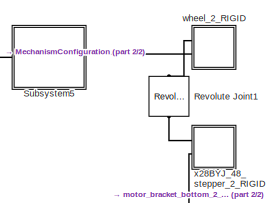
[diagram: root canvas - part 1/2, top right region]
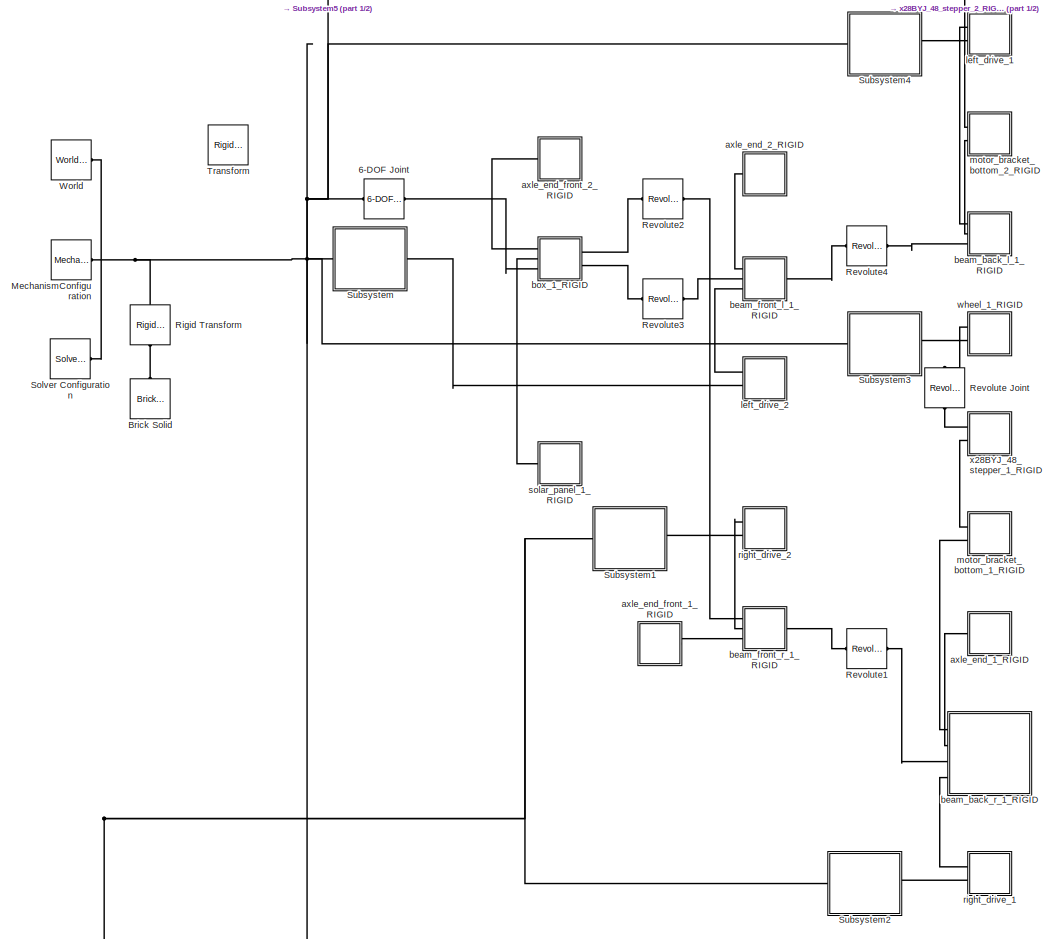
[diagram: root canvas - part 2/2, most of the canvas]
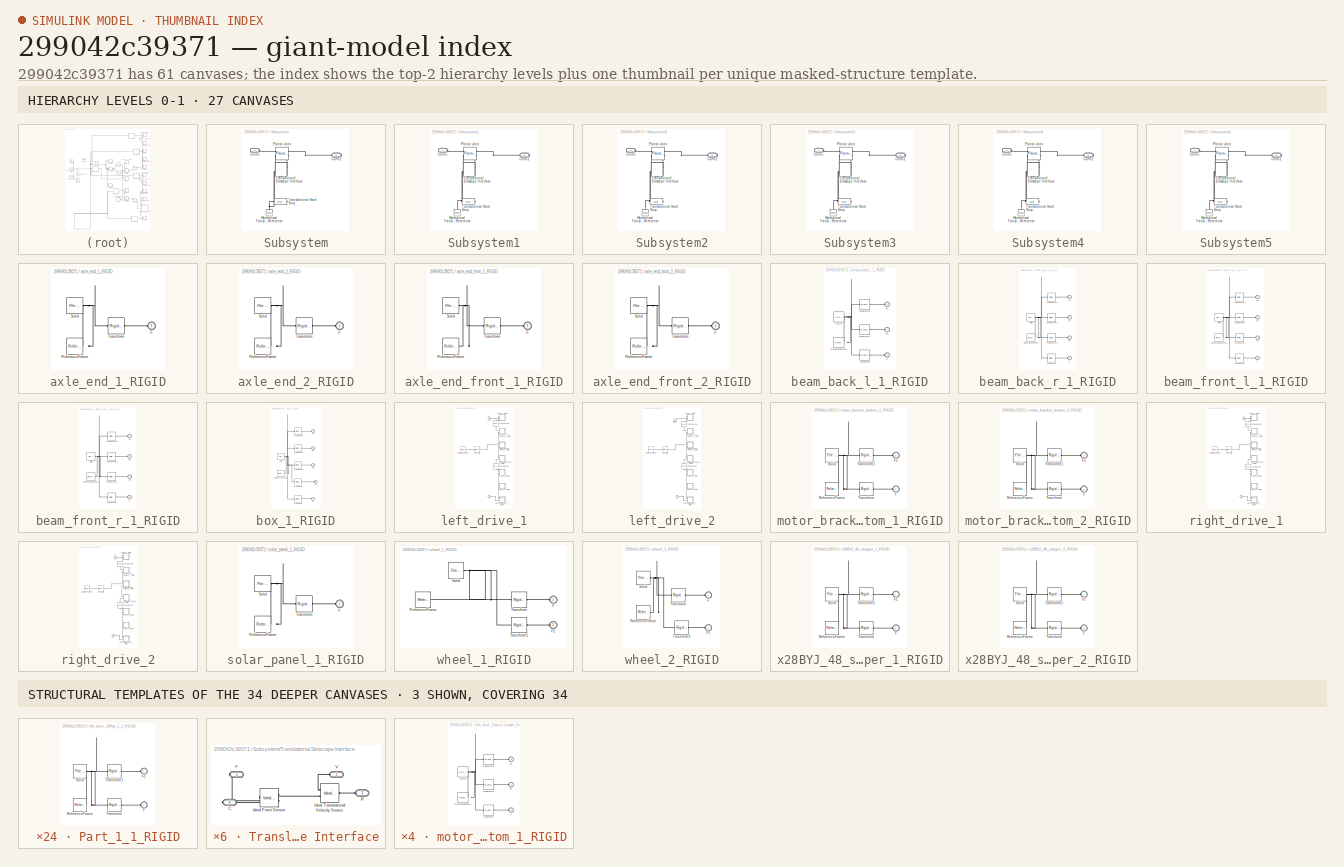
[diagram: thumbnail index - top-2 hierarchy levels (27 canvases) + 3 structural-template representatives of the remaining 34 canvases]
MODEL slx_299042c39371
KIND model
CONFIG AbsTol = auto
CONFIG EnableMultiTasking = off
CONFIG FixedStep = auto
CONFIG MaxStep = 0.01
CONFIG MinStep = auto
CONFIG RelTol = 1e-3
CONFIG SampleTimeConstraint = Unconstrained
CONFIG Solver = ode15s
CONFIG SolverName = ode15s
CONFIG StartTime = 0.0
CONFIG StopTime = 10.0
WORKSPACE source: external: MATLAB File  (data not in archive)
BLOCK [Reference] 6-DOF Joint  REF=sm_lib/Joints/6-DOF Joint
  Ports = [0, 0, 0, 0, 0, 1, 1]
  SourceBlock = sm_lib/Joints/6-DOF Joint
  SourceProductBaseCode = MS
  SourceProductName = Simscape Multibody
  SourceType = 6-DOF Joint
BLOCK [Reference] Brick Solid  REF=sm_lib/Body Elements/Brick Solid
  Ports = [0, 0, 0, 0, 0, 0, 1]
  SourceBlock = sm_lib/Body Elements/Brick Solid
  SourceProductBaseCode = MS
  SourceProductName = Simscape Multibody
  SourceType = Brick Solid
BLOCK [Reference] MechanismConfiguration  REF=sm_lib/Utilities/Mechanism
Configuration
  Ports = [0, 0, 0, 0, 0, 0, 1]
  SourceBlock = sm_lib/Utilities/Mechanism\nConfiguration
  SourceProductBaseCode = MS
  SourceProductName = Simscape Multibody
  SourceType = Mechanism\nConfiguration
BLOCK [Reference] Revolute Joint  REF=sm_lib/Joints/Revolute Joint
  Ports = [0, 0, 0, 0, 0, 1, 1]
  SourceBlock = sm_lib/Joints/Revolute Joint
  SourceProductBaseCode = MS
  SourceProductName = Simscape Multibody
  SourceType = Revolute Joint
BLOCK [Reference] Revolute Joint1  REF=sm_lib/Joints/Revolute Joint
  Ports = [0, 0, 0, 0, 0, 1, 1]
  SourceBlock = sm_lib/Joints/Revolute Joint
  SourceProductBaseCode = MS
  SourceProductName = Simscape Multibody
  SourceType = Revolute Joint
BLOCK [Reference] Revolute1  REF=sm_lib/Joints/Revolute Joint
  Ports = [0, 0, 0, 0, 0, 1, 1]
  SourceBlock = sm_lib/Joints/Revolute Joint
  SourceProductBaseCode = MS
  SourceProductName = Simscape Multibody
  SourceType = Revolute Joint
BLOCK [Reference] Revolute2  REF=sm_lib/Joints/Revolute Joint
  Ports = [0, 0, 0, 0, 0, 1, 1]
  SourceBlock = sm_lib/Joints/Revolute Joint
  SourceProductBaseCode = MS
  SourceProductName = Simscape Multibody
  SourceType = Revolute Joint
BLOCK [Reference] Revolute3  REF=sm_lib/Joints/Revolute Joint
  Ports = [0, 0, 0, 0, 0, 1, 1]
  SourceBlock = sm_lib/Joints/Revolute Joint
  SourceProductBaseCode = MS
  SourceProductName = Simscape Multibody
  SourceType = Revolute Joint
BLOCK [Reference] Revolute4  REF=sm_lib/Joints/Revolute Joint
  Ports = [0, 0, 0, 0, 0, 1, 1]
  SourceBlock = sm_lib/Joints/Revolute Joint
  SourceProductBaseCode = MS
  SourceProductName = Simscape Multibody
  SourceType = Revolute Joint
BLOCK [Reference] Rigid Transform  REF=sm_lib/Frames and
Transforms/Rigid
Transform
  Ports = [0, 0, 0, 0, 0, 1, 1]
  SourceBlock = sm_lib/Frames and\nTransforms/Rigid\nTransform
  SourceProductBaseCode = MS
  SourceProductName = Simscape Multibody
  SourceType = Rigid\nTransform
BLOCK [Reference] Solver Configuration  REF=nesl_utility/Solver
Configuration
  Ports = [0, 0, 0, 0, 0, 0, 1]
  SourceBlock = nesl_utility/Solver\nConfiguration
  SourceProductBaseCode = SS
  SourceProductName = Simscape
  SourceType = Solver\nConfiguration
BLOCK [SubSystem] Subsystem
  Ports = [0, 0, 0, 0, 0, 1, 1]
  RequestExecContextInheritance = off
BLOCK [PMIOPort] Subsystem/Conn1
  Side = Left
BLOCK [PMIOPort] Subsystem/Conn2
  Port = 2
  Side = Right
BLOCK [Reference] Subsystem/Mechanical Translational Reference  REF=fl_lib/Mechanical/Translational
Elements/Mechanical
Translational
Reference
  Ports = [0, 0, 0, 0, 0, 1]
  SourceBlock = fl_lib/Mechanical/Translational\nElements/Mechanical\nTranslational\nReference
  SourceProductBaseCode = SS
  SourceProductName = Simscape
  SourceType = Mechanical\nTranslational\nReference
BLOCK [Reference] Subsystem/Planar Joint  REF=sm_lib/Joints/Planar Joint
  Ports = [0, 0, 0, 0, 0, 2, 2]
  SourceBlock = sm_lib/Joints/Planar Joint
  SourceProductBaseCode = MS
  SourceProductName = Simscape Multibody
  SourceType = Planar Joint
BLOCK [Reference] Subsystem/Translational Hard Stop  REF=fl_lib/Mechanical/Translational
Elements/Translational Hard
Stop
  Ports = [0, 0, 0, 0, 0, 1, 1]
  SourceBlock = fl_lib/Mechanical/Translational\nElements/Translational Hard\nStop
  SourceProductBaseCode = SS
  SourceProductName = Simscape
  SourceType = Translational Hard\nStop
BLOCK [SubSystem] Subsystem/Translational Simscape Interface
  Ports = [0, 0, 0, 0, 0, 2, 2]
  RequestExecContextInheritance = off
BLOCK [PMIOPort] Subsystem/Translational Simscape Interface/C
  Port = 4
  Side = Right
BLOCK [PMIOPort] Subsystem/Translational Simscape Interface/F
  Port = 2
  Side = Right
BLOCK [Reference] Subsystem/Translational Simscape Interface/Ideal Force Sensor  REF=fl_lib/Mechanical/Mechanical Sensors/Ideal Force Sensor
  Ports = [0, 0, 0, 0, 0, 1, 2]
  SourceBlock = fl_lib/Mechanical/Mechanical Sensors/Ideal Force Sensor
  SourceProductBaseCode = SS
  SourceProductName = Simscape
  SourceType = Ideal Force Sensor
BLOCK [Reference] Subsystem/Translational Simscape Interface/Ideal Translational Velocity Source  REF=fl_lib/Mechanical/Mechanical Sources/Ideal Translational
Velocity Source
  Ports = [0, 0, 0, 0, 0, 1, 2]
  SourceBlock = fl_lib/Mechanical/Mechanical Sources/Ideal Translational\nVelocity Source
  SourceProductBaseCode = SS
  SourceProductName = Simscape
  SourceType = Ideal Translational\nVelocity Source
BLOCK [PMIOPort] Subsystem/Translational Simscape Interface/R
  Port = 3
  Side = Left
BLOCK [PMIOPort] Subsystem/Translational Simscape Interface/V
  Side = Left
BLOCK [SubSystem] Subsystem1
  Ports = [0, 0, 0, 0, 0, 1, 1]
  RequestExecContextInheritance = off
BLOCK [PMIOPort] Subsystem1/Conn1
  Side = Left
BLOCK [PMIOPort] Subsystem1/Conn2
  Port = 2
  Side = Right
BLOCK [Reference] Subsystem1/Mechanical Translational Reference  REF=fl_lib/Mechanical/Translational
Elements/Mechanical
Translational
Reference
  Ports = [0, 0, 0, 0, 0, 1]
  SourceBlock = fl_lib/Mechanical/Translational\nElements/Mechanical\nTranslational\nReference
  SourceProductBaseCode = SS
  SourceProductName = Simscape
  SourceType = Mechanical\nTranslational\nReference
BLOCK [Reference] Subsystem1/Planar Joint  REF=sm_lib/Joints/Planar Joint
  Ports = [0, 0, 0, 0, 0, 2, 2]
  SourceBlock = sm_lib/Joints/Planar Joint
  SourceProductBaseCode = MS
  SourceProductName = Simscape Multibody
  SourceType = Planar Joint
BLOCK [Reference] Subsystem1/Translational Hard Stop  REF=fl_lib/Mechanical/Translational
Elements/Translational Hard
Stop
  Ports = [0, 0, 0, 0, 0, 1, 1]
  SourceBlock = fl_lib/Mechanical/Translational\nElements/Translational Hard\nStop
  SourceProductBaseCode = SS
  SourceProductName = Simscape
  SourceType = Translational Hard\nStop
BLOCK [SubSystem] Subsystem1/Translational Simscape Interface
  Ports = [0, 0, 0, 0, 0, 2, 2]
  RequestExecContextInheritance = off
BLOCK [PMIOPort] Subsystem1/Translational Simscape Interface/C
  Port = 4
  Side = Right
BLOCK [PMIOPort] Subsystem1/Translational Simscape Interface/F
  Port = 2
  Side = Right
BLOCK [Reference] Subsystem1/Translational Simscape Interface/Ideal Force Sensor  REF=fl_lib/Mechanical/Mechanical Sensors/Ideal Force Sensor
  Ports = [0, 0, 0, 0, 0, 1, 2]
  SourceBlock = fl_lib/Mechanical/Mechanical Sensors/Ideal Force Sensor
  SourceProductBaseCode = SS
  SourceProductName = Simscape
  SourceType = Ideal Force Sensor
BLOCK [Reference] Subsystem1/Translational Simscape Interface/Ideal Translational Velocity Source  REF=fl_lib/Mechanical/Mechanical Sources/Ideal Translational
Velocity Source
  Ports = [0, 0, 0, 0, 0, 1, 2]
  SourceBlock = fl_lib/Mechanical/Mechanical Sources/Ideal Translational\nVelocity Source
  SourceProductBaseCode = SS
  SourceProductName = Simscape
  SourceType = Ideal Translational\nVelocity Source
BLOCK [PMIOPort] Subsystem1/Translational Simscape Interface/R
  Port = 3
  Side = Left
BLOCK [PMIOPort] Subsystem1/Translational Simscape Interface/V
  Side = Left
BLOCK [SubSystem] Subsystem2
  Ports = [0, 0, 0, 0, 0, 1, 1]
  RequestExecContextInheritance = off
BLOCK [PMIOPort] Subsystem2/Conn1
  Side = Left
BLOCK [PMIOPort] Subsystem2/Conn2
  Port = 2
  Side = Right
BLOCK [Reference] Subsystem2/Mechanical Translational Reference  REF=fl_lib/Mechanical/Translational
Elements/Mechanical
Translational
Reference
  Ports = [0, 0, 0, 0, 0, 1]
  SourceBlock = fl_lib/Mechanical/Translational\nElements/Mechanical\nTranslational\nReference
  SourceProductBaseCode = SS
  SourceProductName = Simscape
  SourceType = Mechanical\nTranslational\nReference
BLOCK [Reference] Subsystem2/Planar Joint  REF=sm_lib/Joints/Planar Joint
  Ports = [0, 0, 0, 0, 0, 2, 2]
  SourceBlock = sm_lib/Joints/Planar Joint
  SourceProductBaseCode = MS
  SourceProductName = Simscape Multibody
  SourceType = Planar Joint
BLOCK [Reference] Subsystem2/Translational Hard Stop  REF=fl_lib/Mechanical/Translational
Elements/Translational Hard
Stop
  Ports = [0, 0, 0, 0, 0, 1, 1]
  SourceBlock = fl_lib/Mechanical/Translational\nElements/Translational Hard\nStop
  SourceProductBaseCode = SS
  SourceProductName = Simscape
  SourceType = Translational Hard\nStop
BLOCK [SubSystem] Subsystem2/Translational Simscape Interface
  Ports = [0, 0, 0, 0, 0, 2, 2]
  RequestExecContextInheritance = off
BLOCK [PMIOPort] Subsystem2/Translational Simscape Interface/C
  Port = 4
  Side = Right
BLOCK [PMIOPort] Subsystem2/Translational Simscape Interface/F
  Port = 2
  Side = Right
BLOCK [Reference] Subsystem2/Translational Simscape Interface/Ideal Force Sensor  REF=fl_lib/Mechanical/Mechanical Sensors/Ideal Force Sensor
  Ports = [0, 0, 0, 0, 0, 1, 2]
  SourceBlock = fl_lib/Mechanical/Mechanical Sensors/Ideal Force Sensor
  SourceProductBaseCode = SS
  SourceProductName = Simscape
  SourceType = Ideal Force Sensor
BLOCK [Reference] Subsystem2/Translational Simscape Interface/Ideal Translational Velocity Source  REF=fl_lib/Mechanical/Mechanical Sources/Ideal Translational
Velocity Source
  Ports = [0, 0, 0, 0, 0, 1, 2]
  SourceBlock = fl_lib/Mechanical/Mechanical Sources/Ideal Translational\nVelocity Source
  SourceProductBaseCode = SS
  SourceProductName = Simscape
  SourceType = Ideal Translational\nVelocity Source
BLOCK [PMIOPort] Subsystem2/Translational Simscape Interface/R
  Port = 3
  Side = Left
BLOCK [PMIOPort] Subsystem2/Translational Simscape Interface/V
  Side = Left
BLOCK [SubSystem] Subsystem3
  Ports = [0, 0, 0, 0, 0, 1, 1]
  RequestExecContextInheritance = off
BLOCK [PMIOPort] Subsystem3/Conn1
  Side = Left
BLOCK [PMIOPort] Subsystem3/Conn2
  Port = 2
  Side = Right
BLOCK [Reference] Subsystem3/Mechanical Translational Reference  REF=fl_lib/Mechanical/Translational
Elements/Mechanical
Translational
Reference
  Ports = [0, 0, 0, 0, 0, 1]
  SourceBlock = fl_lib/Mechanical/Translational\nElements/Mechanical\nTranslational\nReference
  SourceProductBaseCode = SS
  SourceProductName = Simscape
  SourceType = Mechanical\nTranslational\nReference
BLOCK [Reference] Subsystem3/Planar Joint  REF=sm_lib/Joints/Planar Joint
  Ports = [0, 0, 0, 0, 0, 2, 2]
  SourceBlock = sm_lib/Joints/Planar Joint
  SourceProductBaseCode = MS
  SourceProductName = Simscape Multibody
  SourceType = Planar Joint
BLOCK [Reference] Subsystem3/Translational Hard Stop  REF=fl_lib/Mechanical/Translational
Elements/Translational Hard
Stop
  Ports = [0, 0, 0, 0, 0, 1, 1]
  SourceBlock = fl_lib/Mechanical/Translational\nElements/Translational Hard\nStop
  SourceProductBaseCode = SS
  SourceProductName = Simscape
  SourceType = Translational Hard\nStop
BLOCK [SubSystem] Subsystem3/Translational Simscape Interface
  Ports = [0, 0, 0, 0, 0, 2, 2]
  RequestExecContextInheritance = off
BLOCK [PMIOPort] Subsystem3/Translational Simscape Interface/C
  Port = 4
  Side = Right
BLOCK [PMIOPort] Subsystem3/Translational Simscape Interface/F
  Port = 2
  Side = Right
BLOCK [Reference] Subsystem3/Translational Simscape Interface/Ideal Force Sensor  REF=fl_lib/Mechanical/Mechanical Sensors/Ideal Force Sensor
  Ports = [0, 0, 0, 0, 0, 1, 2]
  SourceBlock = fl_lib/Mechanical/Mechanical Sensors/Ideal Force Sensor
  SourceProductBaseCode = SS
  SourceProductName = Simscape
  SourceType = Ideal Force Sensor
BLOCK [Reference] Subsystem3/Translational Simscape Interface/Ideal Translational Velocity Source  REF=fl_lib/Mechanical/Mechanical Sources/Ideal Translational
Velocity Source
  Ports = [0, 0, 0, 0, 0, 1, 2]
  SourceBlock = fl_lib/Mechanical/Mechanical Sources/Ideal Translational\nVelocity Source
  SourceProductBaseCode = SS
  SourceProductName = Simscape
  SourceType = Ideal Translational\nVelocity Source
BLOCK [PMIOPort] Subsystem3/Translational Simscape Interface/R
  Port = 3
  Side = Left
BLOCK [PMIOPort] Subsystem3/Translational Simscape Interface/V
  Side = Left
BLOCK [SubSystem] Subsystem4
  Ports = [0, 0, 0, 0, 0, 1, 1]
  RequestExecContextInheritance = off
BLOCK [PMIOPort] Subsystem4/Conn1
  Side = Left
BLOCK [PMIOPort] Subsystem4/Conn2
  Port = 2
  Side = Right
BLOCK [Reference] Subsystem4/Mechanical Translational Reference  REF=fl_lib/Mechanical/Translational
Elements/Mechanical
Translational
Reference
  Ports = [0, 0, 0, 0, 0, 1]
  SourceBlock = fl_lib/Mechanical/Translational\nElements/Mechanical\nTranslational\nReference
  SourceProductBaseCode = SS
  SourceProductName = Simscape
  SourceType = Mechanical\nTranslational\nReference
BLOCK [Reference] Subsystem4/Planar Joint  REF=sm_lib/Joints/Planar Joint
  Ports = [0, 0, 0, 0, 0, 2, 2]
  SourceBlock = sm_lib/Joints/Planar Joint
  SourceProductBaseCode = MS
  SourceProductName = Simscape Multibody
  SourceType = Planar Joint
BLOCK [Reference] Subsystem4/Translational Hard Stop  REF=fl_lib/Mechanical/Translational
Elements/Translational Hard
Stop
  Ports = [0, 0, 0, 0, 0, 1, 1]
  SourceBlock = fl_lib/Mechanical/Translational\nElements/Translational Hard\nStop
  SourceProductBaseCode = SS
  SourceProductName = Simscape
  SourceType = Translational Hard\nStop
BLOCK [SubSystem] Subsystem4/Translational Simscape Interface
  Ports = [0, 0, 0, 0, 0, 2, 2]
  RequestExecContextInheritance = off
BLOCK [PMIOPort] Subsystem4/Translational Simscape Interface/C
  Port = 4
  Side = Right
BLOCK [PMIOPort] Subsystem4/Translational Simscape Interface/F
  Port = 2
  Side = Right
BLOCK [Reference] Subsystem4/Translational Simscape Interface/Ideal Force Sensor  REF=fl_lib/Mechanical/Mechanical Sensors/Ideal Force Sensor
  Ports = [0, 0, 0, 0, 0, 1, 2]
  SourceBlock = fl_lib/Mechanical/Mechanical Sensors/Ideal Force Sensor
  SourceProductBaseCode = SS
  SourceProductName = Simscape
  SourceType = Ideal Force Sensor
BLOCK [Reference] Subsystem4/Translational Simscape Interface/Ideal Translational Velocity Source  REF=fl_lib/Mechanical/Mechanical Sources/Ideal Translational
Velocity Source
  Ports = [0, 0, 0, 0, 0, 1, 2]
  SourceBlock = fl_lib/Mechanical/Mechanical Sources/Ideal Translational\nVelocity Source
  SourceProductBaseCode = SS
  SourceProductName = Simscape
  SourceType = Ideal Translational\nVelocity Source
BLOCK [PMIOPort] Subsystem4/Translational Simscape Interface/R
  Port = 3
  Side = Left
BLOCK [PMIOPort] Subsystem4/Translational Simscape Interface/V
  Side = Left
BLOCK [SubSystem] Subsystem5
  Ports = [0, 0, 0, 0, 0, 1, 1]
  RequestExecContextInheritance = off
BLOCK [PMIOPort] Subsystem5/Conn1
  Side = Left
BLOCK [PMIOPort] Subsystem5/Conn2
  Port = 2
  Side = Right
BLOCK [Reference] Subsystem5/Mechanical Translational Reference  REF=fl_lib/Mechanical/Translational
Elements/Mechanical
Translational
Reference
  Ports = [0, 0, 0, 0, 0, 1]
  SourceBlock = fl_lib/Mechanical/Translational\nElements/Mechanical\nTranslational\nReference
  SourceProductBaseCode = SS
  SourceProductName = Simscape
  SourceType = Mechanical\nTranslational\nReference
BLOCK [Reference] Subsystem5/Planar Joint  REF=sm_lib/Joints/Planar Joint
  Ports = [0, 0, 0, 0, 0, 2, 2]
  SourceBlock = sm_lib/Joints/Planar Joint
  SourceProductBaseCode = MS
  SourceProductName = Simscape Multibody
  SourceType = Planar Joint
BLOCK [Reference] Subsystem5/Translational Hard Stop  REF=fl_lib/Mechanical/Translational
Elements/Translational Hard
Stop
  Ports = [0, 0, 0, 0, 0, 1, 1]
  SourceBlock = fl_lib/Mechanical/Translational\nElements/Translational Hard\nStop
  SourceProductBaseCode = SS
  SourceProductName = Simscape
  SourceType = Translational Hard\nStop
BLOCK [SubSystem] Subsystem5/Translational Simscape Interface
  Ports = [0, 0, 0, 0, 0, 2, 2]
  RequestExecContextInheritance = off
BLOCK [PMIOPort] Subsystem5/Translational Simscape Interface/C
  Port = 4
  Side = Right
BLOCK [PMIOPort] Subsystem5/Translational Simscape Interface/F
  Port = 2
  Side = Right
BLOCK [Reference] Subsystem5/Translational Simscape Interface/Ideal Force Sensor  REF=fl_lib/Mechanical/Mechanical Sensors/Ideal Force Sensor
  Ports = [0, 0, 0, 0, 0, 1, 2]
  SourceBlock = fl_lib/Mechanical/Mechanical Sensors/Ideal Force Sensor
  SourceProductBaseCode = SS
  SourceProductName = Simscape
  SourceType = Ideal Force Sensor
BLOCK [Reference] Subsystem5/Translational Simscape Interface/Ideal Translational Velocity Source  REF=fl_lib/Mechanical/Mechanical Sources/Ideal Translational
Velocity Source
  Ports = [0, 0, 0, 0, 0, 1, 2]
  SourceBlock = fl_lib/Mechanical/Mechanical Sources/Ideal Translational\nVelocity Source
  SourceProductBaseCode = SS
  SourceProductName = Simscape
  SourceType = Ideal Translational\nVelocity Source
BLOCK [PMIOPort] Subsystem5/Translational Simscape Interface/R
  Port = 3
  Side = Left
BLOCK [PMIOPort] Subsystem5/Translational Simscape Interface/V
  Side = Left
BLOCK [Reference] Transform  REF=sm_lib/Frames and
Transforms/Rigid
Transform
  Ports = [0, 0, 0, 0, 0, 1, 1]
  SourceBlock = sm_lib/Frames and\nTransforms/Rigid\nTransform
  SourceProductBaseCode = MS
  SourceProductName = Simscape Multibody
  SourceType = Rigid\nTransform
BLOCK [Reference] World  REF=sm_lib/Frames and
Transforms/World Frame
  Ports = [0, 0, 0, 0, 0, 0, 1]
  SourceBlock = sm_lib/Frames and\nTransforms/World Frame
  SourceProductBaseCode = MS
  SourceProductName = Simscape Multibody
  SourceType = World Frame
BLOCK [SubSystem] axle_end_1_RIGID
  Ports = [0, 0, 0, 0, 0, 1]
  RequestExecContextInheritance = off
BLOCK [PMIOPort] axle_end_1_RIGID/F
  Side = Left
BLOCK [Reference] axle_end_1_RIGID/ReferenceFrame  REF=sm_lib/Frames and
Transforms/Reference
Frame
  Ports = [0, 0, 0, 0, 0, 0, 1]
  SourceBlock = sm_lib/Frames and\nTransforms/Reference\nFrame
  SourceProductBaseCode = MS
  SourceProductName = Simscape Multibody
  SourceType = Reference\nFrame
BLOCK [Reference] axle_end_1_RIGID/Solid  REF=sm_lib/Body Elements/File Solid
  Ports = [0, 0, 0, 0, 0, 0, 1]
  SourceBlock = sm_lib/Body Elements/File Solid
  SourceProductBaseCode = MS
  SourceProductName = Simscape Multibody
  SourceType = File Solid
BLOCK [Reference] axle_end_1_RIGID/Transform  REF=sm_lib/Frames and
Transforms/Rigid
Transform
  Ports = [0, 0, 0, 0, 0, 1, 1]
  SourceBlock = sm_lib/Frames and\nTransforms/Rigid\nTransform
  SourceProductBaseCode = MS
  SourceProductName = Simscape Multibody
  SourceType = Rigid\nTransform
BLOCK [SubSystem] axle_end_2_RIGID
  Ports = [0, 0, 0, 0, 0, 1]
  RequestExecContextInheritance = off
BLOCK [PMIOPort] axle_end_2_RIGID/F
  Side = Left
BLOCK [Reference] axle_end_2_RIGID/ReferenceFrame  REF=sm_lib/Frames and
Transforms/Reference
Frame
  Ports = [0, 0, 0, 0, 0, 0, 1]
  SourceBlock = sm_lib/Frames and\nTransforms/Reference\nFrame
  SourceProductBaseCode = MS
  SourceProductName = Simscape Multibody
  SourceType = Reference\nFrame
BLOCK [Reference] axle_end_2_RIGID/Solid  REF=sm_lib/Body Elements/File Solid
  Ports = [0, 0, 0, 0, 0, 0, 1]
  SourceBlock = sm_lib/Body Elements/File Solid
  SourceProductBaseCode = MS
  SourceProductName = Simscape Multibody
  SourceType = File Solid
BLOCK [Reference] axle_end_2_RIGID/Transform  REF=sm_lib/Frames and
Transforms/Rigid
Transform
  Ports = [0, 0, 0, 0, 0, 1, 1]
  SourceBlock = sm_lib/Frames and\nTransforms/Rigid\nTransform
  SourceProductBaseCode = MS
  SourceProductName = Simscape Multibody
  SourceType = Rigid\nTransform
BLOCK [SubSystem] axle_end_front_1_RIGID
  Ports = [0, 0, 0, 0, 0, 1]
  RequestExecContextInheritance = off
BLOCK [PMIOPort] axle_end_front_1_RIGID/F
  Side = Left
BLOCK [Reference] axle_end_front_1_RIGID/ReferenceFrame  REF=sm_lib/Frames and
Transforms/Reference
Frame
  Ports = [0, 0, 0, 0, 0, 0, 1]
  SourceBlock = sm_lib/Frames and\nTransforms/Reference\nFrame
  SourceProductBaseCode = MS
  SourceProductName = Simscape Multibody
  SourceType = Reference\nFrame
BLOCK [Reference] axle_end_front_1_RIGID/Solid  REF=sm_lib/Body Elements/File Solid
  Ports = [0, 0, 0, 0, 0, 0, 1]
  SourceBlock = sm_lib/Body Elements/File Solid
  SourceProductBaseCode = MS
  SourceProductName = Simscape Multibody
  SourceType = File Solid
BLOCK [Reference] axle_end_front_1_RIGID/Transform  REF=sm_lib/Frames and
Transforms/Rigid
Transform
  Ports = [0, 0, 0, 0, 0, 1, 1]
  SourceBlock = sm_lib/Frames and\nTransforms/Rigid\nTransform
  SourceProductBaseCode = MS
  SourceProductName = Simscape Multibody
  SourceType = Rigid\nTransform
BLOCK [SubSystem] axle_end_front_2_RIGID
  Ports = [0, 0, 0, 0, 0, 1]
  RequestExecContextInheritance = off
BLOCK [PMIOPort] axle_end_front_2_RIGID/F
  Side = Left
BLOCK [Reference] axle_end_front_2_RIGID/ReferenceFrame  REF=sm_lib/Frames and
Transforms/Reference
Frame
  Ports = [0, 0, 0, 0, 0, 0, 1]
  SourceBlock = sm_lib/Frames and\nTransforms/Reference\nFrame
  SourceProductBaseCode = MS
  SourceProductName = Simscape Multibody
  SourceType = Reference\nFrame
BLOCK [Reference] axle_end_front_2_RIGID/Solid  REF=sm_lib/Body Elements/File Solid
  Ports = [0, 0, 0, 0, 0, 0, 1]
  SourceBlock = sm_lib/Body Elements/File Solid
  SourceProductBaseCode = MS
  SourceProductName = Simscape Multibody
  SourceType = File Solid
BLOCK [Reference] axle_end_front_2_RIGID/Transform  REF=sm_lib/Frames and
Transforms/Rigid
Transform
  Ports = [0, 0, 0, 0, 0, 1, 1]
  SourceBlock = sm_lib/Frames and\nTransforms/Rigid\nTransform
  SourceProductBaseCode = MS
  SourceProductName = Simscape Multibody
  SourceType = Rigid\nTransform
BLOCK [SubSystem] beam_back_l_1_RIGID
  Ports = [0, 0, 0, 0, 0, 3]
  RequestExecContextInheritance = off
BLOCK [PMIOPort] beam_back_l_1_RIGID/F
  Port = 2
  Side = Left
BLOCK [PMIOPort] beam_back_l_1_RIGID/F1
  Port = 3
  Side = Left
BLOCK [PMIOPort] beam_back_l_1_RIGID/F2
  Side = Left
BLOCK [Reference] beam_back_l_1_RIGID/ReferenceFrame  REF=sm_lib/Frames and
Transforms/Reference
Frame
  Ports = [0, 0, 0, 0, 0, 0, 1]
  SourceBlock = sm_lib/Frames and\nTransforms/Reference\nFrame
  SourceProductBaseCode = MS
  SourceProductName = Simscape Multibody
  SourceType = Reference\nFrame
BLOCK [Reference] beam_back_l_1_RIGID/Solid  REF=sm_lib/Body Elements/File Solid
  Ports = [0, 0, 0, 0, 0, 0, 1]
  SourceBlock = sm_lib/Body Elements/File Solid
  SourceProductBaseCode = MS
  SourceProductName = Simscape Multibody
  SourceType = File Solid
BLOCK [Reference] beam_back_l_1_RIGID/Transform  REF=sm_lib/Frames and
Transforms/Rigid
Transform
  Ports = [0, 0, 0, 0, 0, 1, 1]
  SourceBlock = sm_lib/Frames and\nTransforms/Rigid\nTransform
  SourceProductBaseCode = MS
  SourceProductName = Simscape Multibody
  SourceType = Rigid\nTransform
BLOCK [Reference] beam_back_l_1_RIGID/Transform1  REF=sm_lib/Frames and
Transforms/Rigid
Transform
  Ports = [0, 0, 0, 0, 0, 1, 1]
  SourceBlock = sm_lib/Frames and\nTransforms/Rigid\nTransform
  SourceProductBaseCode = MS
  SourceProductName = Simscape Multibody
  SourceType = Rigid\nTransform
BLOCK [Reference] beam_back_l_1_RIGID/Transform2  REF=sm_lib/Frames and
Transforms/Rigid
Transform
  Ports = [0, 0, 0, 0, 0, 1, 1]
  SourceBlock = sm_lib/Frames and\nTransforms/Rigid\nTransform
  SourceProductBaseCode = MS
  SourceProductName = Simscape Multibody
  SourceType = Rigid\nTransform
BLOCK [SubSystem] beam_back_r_1_RIGID
  Ports = [0, 0, 0, 0, 0, 4]
  RequestExecContextInheritance = off
BLOCK [PMIOPort] beam_back_r_1_RIGID/F
  Port = 4
  Side = Left
BLOCK [PMIOPort] beam_back_r_1_RIGID/F1
  Side = Left
BLOCK [PMIOPort] beam_back_r_1_RIGID/F2
  Port = 2
  Side = Left
BLOCK [PMIOPort] beam_back_r_1_RIGID/F3
  Port = 3
  Side = Left
BLOCK [Reference] beam_back_r_1_RIGID/ReferenceFrame  REF=sm_lib/Frames and
Transforms/Reference
Frame
  Ports = [0, 0, 0, 0, 0, 0, 1]
  SourceBlock = sm_lib/Frames and\nTransforms/Reference\nFrame
  SourceProductBaseCode = MS
  SourceProductName = Simscape Multibody
  SourceType = Reference\nFrame
BLOCK [Reference] beam_back_r_1_RIGID/Solid  REF=sm_lib/Body Elements/File Solid
  Ports = [0, 0, 0, 0, 0, 0, 1]
  SourceBlock = sm_lib/Body Elements/File Solid
  SourceProductBaseCode = MS
  SourceProductName = Simscape Multibody
  SourceType = File Solid
BLOCK [Reference] beam_back_r_1_RIGID/Transform  REF=sm_lib/Frames and
Transforms/Rigid
Transform
  Ports = [0, 0, 0, 0, 0, 1, 1]
  SourceBlock = sm_lib/Frames and\nTransforms/Rigid\nTransform
  SourceProductBaseCode = MS
  SourceProductName = Simscape Multibody
  SourceType = Rigid\nTransform
BLOCK [Reference] beam_back_r_1_RIGID/Transform1  REF=sm_lib/Frames and
Transforms/Rigid
Transform
  Ports = [0, 0, 0, 0, 0, 1, 1]
  SourceBlock = sm_lib/Frames and\nTransforms/Rigid\nTransform
  SourceProductBaseCode = MS
  SourceProductName = Simscape Multibody
  SourceType = Rigid\nTransform
BLOCK [Reference] beam_back_r_1_RIGID/Transform2  REF=sm_lib/Frames and
Transforms/Rigid
Transform
  Ports = [0, 0, 0, 0, 0, 1, 1]
  SourceBlock = sm_lib/Frames and\nTransforms/Rigid\nTransform
  SourceProductBaseCode = MS
  SourceProductName = Simscape Multibody
  SourceType = Rigid\nTransform
BLOCK [Reference] beam_back_r_1_RIGID/Transform3  REF=sm_lib/Frames and
Transforms/Rigid
Transform
  Ports = [0, 0, 0, 0, 0, 1, 1]
  SourceBlock = sm_lib/Frames and\nTransforms/Rigid\nTransform
  SourceProductBaseCode = MS
  SourceProductName = Simscape Multibody
  SourceType = Rigid\nTransform
BLOCK [SubSystem] beam_front_l_1_RIGID
  Ports = [0, 0, 0, 0, 0, 3, 1]
  RequestExecContextInheritance = off
BLOCK [PMIOPort] beam_front_l_1_RIGID/F
  Port = 3
  Side = Left
BLOCK [PMIOPort] beam_front_l_1_RIGID/F1
  Port = 4
  Side = Right
BLOCK [PMIOPort] beam_front_l_1_RIGID/F2
  Side = Left
BLOCK [PMIOPort] beam_front_l_1_RIGID/F3
  Port = 2
  Side = Left
BLOCK [Reference] beam_front_l_1_RIGID/ReferenceFrame  REF=sm_lib/Frames and
Transforms/Reference
Frame
  Ports = [0, 0, 0, 0, 0, 0, 1]
  SourceBlock = sm_lib/Frames and\nTransforms/Reference\nFrame
  SourceProductBaseCode = MS
  SourceProductName = Simscape Multibody
  SourceType = Reference\nFrame
BLOCK [Reference] beam_front_l_1_RIGID/Solid  REF=sm_lib/Body Elements/File Solid
  Ports = [0, 0, 0, 0, 0, 0, 1]
  SourceBlock = sm_lib/Body Elements/File Solid
  SourceProductBaseCode = MS
  SourceProductName = Simscape Multibody
  SourceType = File Solid
BLOCK [Reference] beam_front_l_1_RIGID/Transform  REF=sm_lib/Frames and
Transforms/Rigid
Transform
  Ports = [0, 0, 0, 0, 0, 1, 1]
  SourceBlock = sm_lib/Frames and\nTransforms/Rigid\nTransform
  SourceProductBaseCode = MS
  SourceProductName = Simscape Multibody
  SourceType = Rigid\nTransform
BLOCK [Reference] beam_front_l_1_RIGID/Transform1  REF=sm_lib/Frames and
Transforms/Rigid
Transform
  Ports = [0, 0, 0, 0, 0, 1, 1]
  SourceBlock = sm_lib/Frames and\nTransforms/Rigid\nTransform
  SourceProductBaseCode = MS
  SourceProductName = Simscape Multibody
  SourceType = Rigid\nTransform
BLOCK [Reference] beam_front_l_1_RIGID/Transform2  REF=sm_lib/Frames and
Transforms/Rigid
Transform
  Ports = [0, 0, 0, 0, 0, 1, 1]
  SourceBlock = sm_lib/Frames and\nTransforms/Rigid\nTransform
  SourceProductBaseCode = MS
  SourceProductName = Simscape Multibody
  SourceType = Rigid\nTransform
BLOCK [Reference] beam_front_l_1_RIGID/Transform3  REF=sm_lib/Frames and
Transforms/Rigid
Transform
  Ports = [0, 0, 0, 0, 0, 1, 1]
  SourceBlock = sm_lib/Frames and\nTransforms/Rigid\nTransform
  SourceProductBaseCode = MS
  SourceProductName = Simscape Multibody
  SourceType = Rigid\nTransform
BLOCK [SubSystem] beam_front_r_1_RIGID
  Ports = [0, 0, 0, 0, 0, 3, 1]
  RequestExecContextInheritance = off
BLOCK [PMIOPort] beam_front_r_1_RIGID/F
  Port = 3
  Side = Left
BLOCK [PMIOPort] beam_front_r_1_RIGID/F1
  Port = 4
  Side = Right
BLOCK [PMIOPort] beam_front_r_1_RIGID/F2
  Port = 2
  Side = Left
BLOCK [PMIOPort] beam_front_r_1_RIGID/F3
  Side = Left
BLOCK [Reference] beam_front_r_1_RIGID/ReferenceFrame  REF=sm_lib/Frames and
Transforms/Reference
Frame
  Ports = [0, 0, 0, 0, 0, 0, 1]
  SourceBlock = sm_lib/Frames and\nTransforms/Reference\nFrame
  SourceProductBaseCode = MS
  SourceProductName = Simscape Multibody
  SourceType = Reference\nFrame
BLOCK [Reference] beam_front_r_1_RIGID/Solid  REF=sm_lib/Body Elements/File Solid
  Ports = [0, 0, 0, 0, 0, 0, 1]
  SourceBlock = sm_lib/Body Elements/File Solid
  SourceProductBaseCode = MS
  SourceProductName = Simscape Multibody
  SourceType = File Solid
BLOCK [Reference] beam_front_r_1_RIGID/Transform  REF=sm_lib/Frames and
Transforms/Rigid
Transform
  Ports = [0, 0, 0, 0, 0, 1, 1]
  SourceBlock = sm_lib/Frames and\nTransforms/Rigid\nTransform
  SourceProductBaseCode = MS
  SourceProductName = Simscape Multibody
  SourceType = Rigid\nTransform
BLOCK [Reference] beam_front_r_1_RIGID/Transform1  REF=sm_lib/Frames and
Transforms/Rigid
Transform
  Ports = [0, 0, 0, 0, 0, 1, 1]
  SourceBlock = sm_lib/Frames and\nTransforms/Rigid\nTransform
  SourceProductBaseCode = MS
  SourceProductName = Simscape Multibody
  SourceType = Rigid\nTransform
BLOCK [Reference] beam_front_r_1_RIGID/Transform2  REF=sm_lib/Frames and
Transforms/Rigid
Transform
  Ports = [0, 0, 0, 0, 0, 1, 1]
  SourceBlock = sm_lib/Frames and\nTransforms/Rigid\nTransform
  SourceProductBaseCode = MS
  SourceProductName = Simscape Multibody
  SourceType = Rigid\nTransform
BLOCK [Reference] beam_front_r_1_RIGID/Transform3  REF=sm_lib/Frames and
Transforms/Rigid
Transform
  Ports = [0, 0, 0, 0, 0, 1, 1]
  SourceBlock = sm_lib/Frames and\nTransforms/Rigid\nTransform
  SourceProductBaseCode = MS
  SourceProductName = Simscape Multibody
  SourceType = Rigid\nTransform
BLOCK [SubSystem] box_1_RIGID
  Ports = [0, 0, 0, 0, 0, 3, 2]
  RequestExecContextInheritance = off
BLOCK [PMIOPort] box_1_RIGID/F
  Port = 2
  Side = Left
BLOCK [PMIOPort] box_1_RIGID/F1
  Port = 5
  Side = Left
BLOCK [PMIOPort] box_1_RIGID/F2
  Port = 4
  Side = Right
BLOCK [PMIOPort] box_1_RIGID/F3
  Port = 3
  Side = Right
BLOCK [PMIOPort] box_1_RIGID/F4
  Side = Left
BLOCK [Reference] box_1_RIGID/ReferenceFrame  REF=sm_lib/Frames and
Transforms/Reference
Frame
  Ports = [0, 0, 0, 0, 0, 0, 1]
  SourceBlock = sm_lib/Frames and\nTransforms/Reference\nFrame
  SourceProductBaseCode = MS
  SourceProductName = Simscape Multibody
  SourceType = Reference\nFrame
BLOCK [Reference] box_1_RIGID/Solid  REF=sm_lib/Body Elements/File Solid
  Ports = [0, 0, 0, 0, 0, 0, 1]
  SourceBlock = sm_lib/Body Elements/File Solid
  SourceProductBaseCode = MS
  SourceProductName = Simscape Multibody
  SourceType = File Solid
BLOCK [Reference] box_1_RIGID/Transform  REF=sm_lib/Frames and
Transforms/Rigid
Transform
  Ports = [0, 0, 0, 0, 0, 1, 1]
  SourceBlock = sm_lib/Frames and\nTransforms/Rigid\nTransform
  SourceProductBaseCode = MS
  SourceProductName = Simscape Multibody
  SourceType = Rigid\nTransform
BLOCK [Reference] box_1_RIGID/Transform1  REF=sm_lib/Frames and
Transforms/Rigid
Transform
  Ports = [0, 0, 0, 0, 0, 1, 1]
  SourceBlock = sm_lib/Frames and\nTransforms/Rigid\nTransform
  SourceProductBaseCode = MS
  SourceProductName = Simscape Multibody
  SourceType = Rigid\nTransform
BLOCK [Reference] box_1_RIGID/Transform2  REF=sm_lib/Frames and
Transforms/Rigid
Transform
  Ports = [0, 0, 0, 0, 0, 1, 1]
  SourceBlock = sm_lib/Frames and\nTransforms/Rigid\nTransform
  SourceProductBaseCode = MS
  SourceProductName = Simscape Multibody
  SourceType = Rigid\nTransform
BLOCK [Reference] box_1_RIGID/Transform3  REF=sm_lib/Frames and
Transforms/Rigid
Transform
  Ports = [0, 0, 0, 0, 0, 1, 1]
  SourceBlock = sm_lib/Frames and\nTransforms/Rigid\nTransform
  SourceProductBaseCode = MS
  SourceProductName = Simscape Multibody
  SourceType = Rigid\nTransform
BLOCK [Reference] box_1_RIGID/Transform4  REF=sm_lib/Frames and
Transforms/Rigid
Transform
  Ports = [0, 0, 0, 0, 0, 1, 1]
  SourceBlock = sm_lib/Frames and\nTransforms/Rigid\nTransform
  SourceProductBaseCode = MS
  SourceProductName = Simscape Multibody
  SourceType = Rigid\nTransform
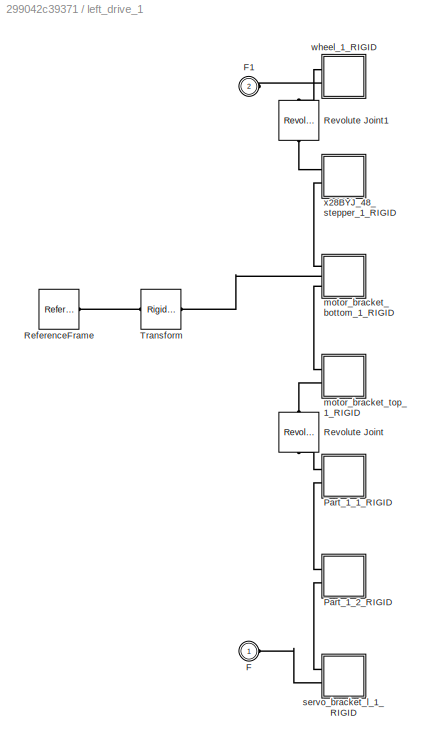
BLOCK [SubSystem] left_drive_1
  Ports = [0, 0, 0, 0, 0, 2]
  RequestExecContextInheritance = off
BLOCK [PMIOPort] left_drive_1/F
  Side = Left
BLOCK [PMIOPort] left_drive_1/F1
  Port = 2
  Side = Left
BLOCK [SubSystem] left_drive_1/Part_1_1_RIGID
  Ports = [0, 0, 0, 0, 0, 2]
  RequestExecContextInheritance = off
BLOCK [PMIOPort] left_drive_1/Part_1_1_RIGID/F
  Side = Left
BLOCK [PMIOPort] left_drive_1/Part_1_1_RIGID/F1
  Port = 2
  Side = Left
BLOCK [Reference] left_drive_1/Part_1_1_RIGID/ReferenceFrame  REF=sm_lib/Frames and
Transforms/Reference
Frame
  Ports = [0, 0, 0, 0, 0, 0, 1]
  SourceBlock = sm_lib/Frames and\nTransforms/Reference\nFrame
  SourceProductBaseCode = MS
  SourceProductName = Simscape Multibody
  SourceType = Reference\nFrame
BLOCK [Reference] left_drive_1/Part_1_1_RIGID/Solid  REF=sm_lib/Body Elements/File Solid
  Ports = [0, 0, 0, 0, 0, 0, 1]
  SourceBlock = sm_lib/Body Elements/File Solid
  SourceProductBaseCode = MS
  SourceProductName = Simscape Multibody
  SourceType = File Solid
BLOCK [Reference] left_drive_1/Part_1_1_RIGID/Transform  REF=sm_lib/Frames and
Transforms/Rigid
Transform
  Ports = [0, 0, 0, 0, 0, 1, 1]
  SourceBlock = sm_lib/Frames and\nTransforms/Rigid\nTransform
  SourceProductBaseCode = MS
  SourceProductName = Simscape Multibody
  SourceType = Rigid\nTransform
BLOCK [Reference] left_drive_1/Part_1_1_RIGID/Transform1  REF=sm_lib/Frames and
Transforms/Rigid
Transform
  Ports = [0, 0, 0, 0, 0, 1, 1]
  SourceBlock = sm_lib/Frames and\nTransforms/Rigid\nTransform
  SourceProductBaseCode = MS
  SourceProductName = Simscape Multibody
  SourceType = Rigid\nTransform
BLOCK [SubSystem] left_drive_1/Part_1_2_RIGID
  Ports = [0, 0, 0, 0, 0, 2]
  RequestExecContextInheritance = off
BLOCK [PMIOPort] left_drive_1/Part_1_2_RIGID/F
  Side = Left
BLOCK [PMIOPort] left_drive_1/Part_1_2_RIGID/F1
  Port = 2
  Side = Left
BLOCK [Reference] left_drive_1/Part_1_2_RIGID/ReferenceFrame  REF=sm_lib/Frames and
Transforms/Reference
Frame
  Ports = [0, 0, 0, 0, 0, 0, 1]
  SourceBlock = sm_lib/Frames and\nTransforms/Reference\nFrame
  SourceProductBaseCode = MS
  SourceProductName = Simscape Multibody
  SourceType = Reference\nFrame
BLOCK [Reference] left_drive_1/Part_1_2_RIGID/Solid  REF=sm_lib/Body Elements/File Solid
  Ports = [0, 0, 0, 0, 0, 0, 1]
  SourceBlock = sm_lib/Body Elements/File Solid
  SourceProductBaseCode = MS
  SourceProductName = Simscape Multibody
  SourceType = File Solid
BLOCK [Reference] left_drive_1/Part_1_2_RIGID/Transform  REF=sm_lib/Frames and
Transforms/Rigid
Transform
  Ports = [0, 0, 0, 0, 0, 1, 1]
  SourceBlock = sm_lib/Frames and\nTransforms/Rigid\nTransform
  SourceProductBaseCode = MS
  SourceProductName = Simscape Multibody
  SourceType = Rigid\nTransform
BLOCK [Reference] left_drive_1/Part_1_2_RIGID/Transform1  REF=sm_lib/Frames and
Transforms/Rigid
Transform
  Ports = [0, 0, 0, 0, 0, 1, 1]
  SourceBlock = sm_lib/Frames and\nTransforms/Rigid\nTransform
  SourceProductBaseCode = MS
  SourceProductName = Simscape Multibody
  SourceType = Rigid\nTransform
BLOCK [Reference] left_drive_1/ReferenceFrame  REF=sm_lib/Frames and
Transforms/Reference
Frame
  Ports = [0, 0, 0, 0, 0, 0, 1]
  SourceBlock = sm_lib/Frames and\nTransforms/Reference\nFrame
  SourceProductBaseCode = MS
  SourceProductName = Simscape Multibody
  SourceType = Reference\nFrame
BLOCK [Reference] left_drive_1/Revolute Joint  REF=sm_lib/Joints/Revolute Joint
  Ports = [0, 0, 0, 0, 0, 1, 1]
  SourceBlock = sm_lib/Joints/Revolute Joint
  SourceProductBaseCode = MS
  SourceProductName = Simscape Multibody
  SourceType = Revolute Joint
BLOCK [Reference] left_drive_1/Revolute Joint1  REF=sm_lib/Joints/Revolute Joint
  Ports = [0, 0, 0, 0, 0, 1, 1]
  SourceBlock = sm_lib/Joints/Revolute Joint
  SourceProductBaseCode = MS
  SourceProductName = Simscape Multibody
  SourceType = Revolute Joint
BLOCK [Reference] left_drive_1/Transform  REF=sm_lib/Frames and
Transforms/Rigid
Transform
  Ports = [0, 0, 0, 0, 0, 1, 1]
  SourceBlock = sm_lib/Frames and\nTransforms/Rigid\nTransform
  SourceProductBaseCode = MS
  SourceProductName = Simscape Multibody
  SourceType = Rigid\nTransform
BLOCK [SubSystem] left_drive_1/motor_bracket_bottom_1_RIGID
  Ports = [0, 0, 0, 0, 0, 3]
  RequestExecContextInheritance = off
BLOCK [PMIOPort] left_drive_1/motor_bracket_bottom_1_RIGID/F
  Port = 2
  Side = Left
BLOCK [PMIOPort] left_drive_1/motor_bracket_bottom_1_RIGID/F1
  Side = Left
BLOCK [PMIOPort] left_drive_1/motor_bracket_bottom_1_RIGID/F2
  Port = 3
  Side = Left
BLOCK [Reference] left_drive_1/motor_bracket_bottom_1_RIGID/ReferenceFrame  REF=sm_lib/Frames and
Transforms/Reference
Frame
  Ports = [0, 0, 0, 0, 0, 0, 1]
  SourceBlock = sm_lib/Frames and\nTransforms/Reference\nFrame
  SourceProductBaseCode = MS
  SourceProductName = Simscape Multibody
  SourceType = Reference\nFrame
BLOCK [Reference] left_drive_1/motor_bracket_bottom_1_RIGID/Solid  REF=sm_lib/Body Elements/File Solid
  Ports = [0, 0, 0, 0, 0, 0, 1]
  SourceBlock = sm_lib/Body Elements/File Solid
  SourceProductBaseCode = MS
  SourceProductName = Simscape Multibody
  SourceType = File Solid
BLOCK [Reference] left_drive_1/motor_bracket_bottom_1_RIGID/Transform  REF=sm_lib/Frames and
Transforms/Rigid
Transform
  Ports = [0, 0, 0, 0, 0, 1, 1]
  SourceBlock = sm_lib/Frames and\nTransforms/Rigid\nTransform
  SourceProductBaseCode = MS
  SourceProductName = Simscape Multibody
  SourceType = Rigid\nTransform
BLOCK [Reference] left_drive_1/motor_bracket_bottom_1_RIGID/Transform1  REF=sm_lib/Frames and
Transforms/Rigid
Transform
  Ports = [0, 0, 0, 0, 0, 1, 1]
  SourceBlock = sm_lib/Frames and\nTransforms/Rigid\nTransform
  SourceProductBaseCode = MS
  SourceProductName = Simscape Multibody
  SourceType = Rigid\nTransform
BLOCK [Reference] left_drive_1/motor_bracket_bottom_1_RIGID/Transform2  REF=sm_lib/Frames and
Transforms/Rigid
Transform
  Ports = [0, 0, 0, 0, 0, 1, 1]
  SourceBlock = sm_lib/Frames and\nTransforms/Rigid\nTransform
  SourceProductBaseCode = MS
  SourceProductName = Simscape Multibody
  SourceType = Rigid\nTransform
BLOCK [SubSystem] left_drive_1/motor_bracket_top_1_RIGID
  Ports = [0, 0, 0, 0, 0, 2]
  RequestExecContextInheritance = off
BLOCK [PMIOPort] left_drive_1/motor_bracket_top_1_RIGID/F
  Port = 2
  Side = Left
BLOCK [PMIOPort] left_drive_1/motor_bracket_top_1_RIGID/F1
  Side = Left
BLOCK [Reference] left_drive_1/motor_bracket_top_1_RIGID/ReferenceFrame  REF=sm_lib/Frames and
Transforms/Reference
Frame
  Ports = [0, 0, 0, 0, 0, 0, 1]
  SourceBlock = sm_lib/Frames and\nTransforms/Reference\nFrame
  SourceProductBaseCode = MS
  SourceProductName = Simscape Multibody
  SourceType = Reference\nFrame
BLOCK [Reference] left_drive_1/motor_bracket_top_1_RIGID/Solid  REF=sm_lib/Body Elements/File Solid
  Ports = [0, 0, 0, 0, 0, 0, 1]
  SourceBlock = sm_lib/Body Elements/File Solid
  SourceProductBaseCode = MS
  SourceProductName = Simscape Multibody
  SourceType = File Solid
BLOCK [Reference] left_drive_1/motor_bracket_top_1_RIGID/Transform  REF=sm_lib/Frames and
Transforms/Rigid
Transform
  Ports = [0, 0, 0, 0, 0, 1, 1]
  SourceBlock = sm_lib/Frames and\nTransforms/Rigid\nTransform
  SourceProductBaseCode = MS
  SourceProductName = Simscape Multibody
  SourceType = Rigid\nTransform
BLOCK [Reference] left_drive_1/motor_bracket_top_1_RIGID/Transform1  REF=sm_lib/Frames and
Transforms/Rigid
Transform
  Ports = [0, 0, 0, 0, 0, 1, 1]
  SourceBlock = sm_lib/Frames and\nTransforms/Rigid\nTransform
  SourceProductBaseCode = MS
  SourceProductName = Simscape Multibody
  SourceType = Rigid\nTransform
BLOCK [SubSystem] left_drive_1/servo_bracket_l_1_RIGID
  Ports = [0, 0, 0, 0, 0, 2]
  RequestExecContextInheritance = off
BLOCK [PMIOPort] left_drive_1/servo_bracket_l_1_RIGID/F
  Side = Left
BLOCK [PMIOPort] left_drive_1/servo_bracket_l_1_RIGID/F1
  Port = 2
  Side = Left
BLOCK [Reference] left_drive_1/servo_bracket_l_1_RIGID/ReferenceFrame  REF=sm_lib/Frames and
Transforms/Reference
Frame
  Ports = [0, 0, 0, 0, 0, 0, 1]
  SourceBlock = sm_lib/Frames and\nTransforms/Reference\nFrame
  SourceProductBaseCode = MS
  SourceProductName = Simscape Multibody
  SourceType = Reference\nFrame
BLOCK [Reference] left_drive_1/servo_bracket_l_1_RIGID/Solid  REF=sm_lib/Body Elements/File Solid
  Ports = [0, 0, 0, 0, 0, 0, 1]
  SourceBlock = sm_lib/Body Elements/File Solid
  SourceProductBaseCode = MS
  SourceProductName = Simscape Multibody
  SourceType = File Solid
BLOCK [Reference] left_drive_1/servo_bracket_l_1_RIGID/Transform  REF=sm_lib/Frames and
Transforms/Rigid
Transform
  Ports = [0, 0, 0, 0, 0, 1, 1]
  SourceBlock = sm_lib/Frames and\nTransforms/Rigid\nTransform
  SourceProductBaseCode = MS
  SourceProductName = Simscape Multibody
  SourceType = Rigid\nTransform
BLOCK [Reference] left_drive_1/servo_bracket_l_1_RIGID/Transform1  REF=sm_lib/Frames and
Transforms/Rigid
Transform
  Ports = [0, 0, 0, 0, 0, 1, 1]
  SourceBlock = sm_lib/Frames and\nTransforms/Rigid\nTransform
  SourceProductBaseCode = MS
  SourceProductName = Simscape Multibody
  SourceType = Rigid\nTransform
BLOCK [SubSystem] left_drive_1/wheel_1_RIGID
  Ports = [0, 0, 0, 0, 0, 2]
  RequestExecContextInheritance = off
BLOCK [PMIOPort] left_drive_1/wheel_1_RIGID/F
  Side = Left
BLOCK [PMIOPort] left_drive_1/wheel_1_RIGID/F1
  Port = 2
  Side = Left
BLOCK [Reference] left_drive_1/wheel_1_RIGID/ReferenceFrame  REF=sm_lib/Frames and
Transforms/Reference
Frame
  Ports = [0, 0, 0, 0, 0, 0, 1]
  SourceBlock = sm_lib/Frames and\nTransforms/Reference\nFrame
  SourceProductBaseCode = MS
  SourceProductName = Simscape Multibody
  SourceType = Reference\nFrame
BLOCK [Reference] left_drive_1/wheel_1_RIGID/Solid  REF=sm_lib/Body Elements/File Solid
  Ports = [0, 0, 0, 0, 0, 0, 1]
  SourceBlock = sm_lib/Body Elements/File Solid
  SourceProductBaseCode = MS
  SourceProductName = Simscape Multibody
  SourceType = File Solid
BLOCK [Reference] left_drive_1/wheel_1_RIGID/Transform  REF=sm_lib/Frames and
Transforms/Rigid
Transform
  Ports = [0, 0, 0, 0, 0, 1, 1]
  SourceBlock = sm_lib/Frames and\nTransforms/Rigid\nTransform
  SourceProductBaseCode = MS
  SourceProductName = Simscape Multibody
  SourceType = Rigid\nTransform
BLOCK [Reference] left_drive_1/wheel_1_RIGID/Transform1  REF=sm_lib/Frames and
Transforms/Rigid
Transform
  Ports = [0, 0, 0, 0, 0, 1, 1]
  SourceBlock = sm_lib/Frames and\nTransforms/Rigid\nTransform
  SourceProductBaseCode = MS
  SourceProductName = Simscape Multibody
  SourceType = Rigid\nTransform
BLOCK [SubSystem] left_drive_1/x28BYJ_48_stepper_1_RIGID
  Ports = [0, 0, 0, 0, 0, 2]
  RequestExecContextInheritance = off
BLOCK [PMIOPort] left_drive_1/x28BYJ_48_stepper_1_RIGID/F
  Side = Left
BLOCK [PMIOPort] left_drive_1/x28BYJ_48_stepper_1_RIGID/F1
  Port = 2
  Side = Left
BLOCK [Reference] left_drive_1/x28BYJ_48_stepper_1_RIGID/ReferenceFrame  REF=sm_lib/Frames and
Transforms/Reference
Frame
  Ports = [0, 0, 0, 0, 0, 0, 1]
  SourceBlock = sm_lib/Frames and\nTransforms/Reference\nFrame
  SourceProductBaseCode = MS
  SourceProductName = Simscape Multibody
  SourceType = Reference\nFrame
BLOCK [Reference] left_drive_1/x28BYJ_48_stepper_1_RIGID/Solid  REF=sm_lib/Body Elements/File Solid
  Ports = [0, 0, 0, 0, 0, 0, 1]
  SourceBlock = sm_lib/Body Elements/File Solid
  SourceProductBaseCode = MS
  SourceProductName = Simscape Multibody
  SourceType = File Solid
BLOCK [Reference] left_drive_1/x28BYJ_48_stepper_1_RIGID/Transform  REF=sm_lib/Frames and
Transforms/Rigid
Transform
  Ports = [0, 0, 0, 0, 0, 1, 1]
  SourceBlock = sm_lib/Frames and\nTransforms/Rigid\nTransform
  SourceProductBaseCode = MS
  SourceProductName = Simscape Multibody
  SourceType = Rigid\nTransform
BLOCK [Reference] left_drive_1/x28BYJ_48_stepper_1_RIGID/Transform1  REF=sm_lib/Frames and
Transforms/Rigid
Transform
  Ports = [0, 0, 0, 0, 0, 1, 1]
  SourceBlock = sm_lib/Frames and\nTransforms/Rigid\nTransform
  SourceProductBaseCode = MS
  SourceProductName = Simscape Multibody
  SourceType = Rigid\nTransform
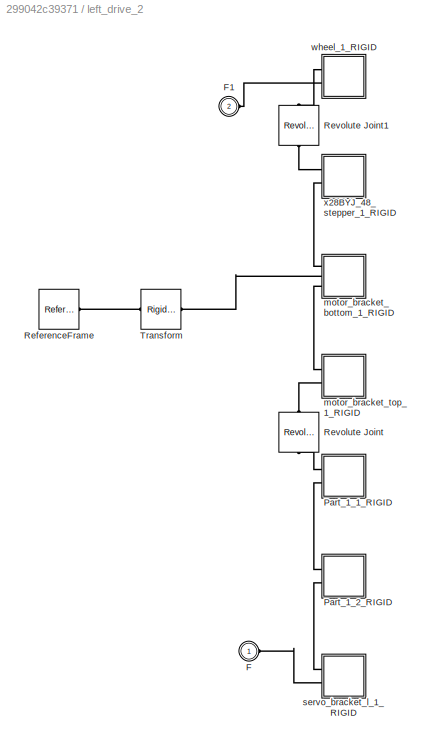
BLOCK [SubSystem] left_drive_2
  Ports = [0, 0, 0, 0, 0, 2]
  RequestExecContextInheritance = off
BLOCK [PMIOPort] left_drive_2/F
  Side = Left
BLOCK [PMIOPort] left_drive_2/F1
  Port = 2
  Side = Left
BLOCK [SubSystem] left_drive_2/Part_1_1_RIGID
  Ports = [0, 0, 0, 0, 0, 2]
  RequestExecContextInheritance = off
BLOCK [PMIOPort] left_drive_2/Part_1_1_RIGID/F
  Side = Left
BLOCK [PMIOPort] left_drive_2/Part_1_1_RIGID/F1
  Port = 2
  Side = Left
BLOCK [Reference] left_drive_2/Part_1_1_RIGID/ReferenceFrame  REF=sm_lib/Frames and
Transforms/Reference
Frame
  Ports = [0, 0, 0, 0, 0, 0, 1]
  SourceBlock = sm_lib/Frames and\nTransforms/Reference\nFrame
  SourceProductBaseCode = MS
  SourceProductName = Simscape Multibody
  SourceType = Reference\nFrame
BLOCK [Reference] left_drive_2/Part_1_1_RIGID/Solid  REF=sm_lib/Body Elements/File Solid
  Ports = [0, 0, 0, 0, 0, 0, 1]
  SourceBlock = sm_lib/Body Elements/File Solid
  SourceProductBaseCode = MS
  SourceProductName = Simscape Multibody
  SourceType = File Solid
BLOCK [Reference] left_drive_2/Part_1_1_RIGID/Transform  REF=sm_lib/Frames and
Transforms/Rigid
Transform
  Ports = [0, 0, 0, 0, 0, 1, 1]
  SourceBlock = sm_lib/Frames and\nTransforms/Rigid\nTransform
  SourceProductBaseCode = MS
  SourceProductName = Simscape Multibody
  SourceType = Rigid\nTransform
BLOCK [Reference] left_drive_2/Part_1_1_RIGID/Transform1  REF=sm_lib/Frames and
Transforms/Rigid
Transform
  Ports = [0, 0, 0, 0, 0, 1, 1]
  SourceBlock = sm_lib/Frames and\nTransforms/Rigid\nTransform
  SourceProductBaseCode = MS
  SourceProductName = Simscape Multibody
  SourceType = Rigid\nTransform
BLOCK [SubSystem] left_drive_2/Part_1_2_RIGID
  Ports = [0, 0, 0, 0, 0, 2]
  RequestExecContextInheritance = off
BLOCK [PMIOPort] left_drive_2/Part_1_2_RIGID/F
  Side = Left
BLOCK [PMIOPort] left_drive_2/Part_1_2_RIGID/F1
  Port = 2
  Side = Left
BLOCK [Reference] left_drive_2/Part_1_2_RIGID/ReferenceFrame  REF=sm_lib/Frames and
Transforms/Reference
Frame
  Ports = [0, 0, 0, 0, 0, 0, 1]
  SourceBlock = sm_lib/Frames and\nTransforms/Reference\nFrame
  SourceProductBaseCode = MS
  SourceProductName = Simscape Multibody
  SourceType = Reference\nFrame
BLOCK [Reference] left_drive_2/Part_1_2_RIGID/Solid  REF=sm_lib/Body Elements/File Solid
  Ports = [0, 0, 0, 0, 0, 0, 1]
  SourceBlock = sm_lib/Body Elements/File Solid
  SourceProductBaseCode = MS
  SourceProductName = Simscape Multibody
  SourceType = File Solid
BLOCK [Reference] left_drive_2/Part_1_2_RIGID/Transform  REF=sm_lib/Frames and
Transforms/Rigid
Transform
  Ports = [0, 0, 0, 0, 0, 1, 1]
  SourceBlock = sm_lib/Frames and\nTransforms/Rigid\nTransform
  SourceProductBaseCode = MS
  SourceProductName = Simscape Multibody
  SourceType = Rigid\nTransform
BLOCK [Reference] left_drive_2/Part_1_2_RIGID/Transform1  REF=sm_lib/Frames and
Transforms/Rigid
Transform
  Ports = [0, 0, 0, 0, 0, 1, 1]
  SourceBlock = sm_lib/Frames and\nTransforms/Rigid\nTransform
  SourceProductBaseCode = MS
  SourceProductName = Simscape Multibody
  SourceType = Rigid\nTransform
BLOCK [Reference] left_drive_2/ReferenceFrame  REF=sm_lib/Frames and
Transforms/Reference
Frame
  Ports = [0, 0, 0, 0, 0, 0, 1]
  SourceBlock = sm_lib/Frames and\nTransforms/Reference\nFrame
  SourceProductBaseCode = MS
  SourceProductName = Simscape Multibody
  SourceType = Reference\nFrame
BLOCK [Reference] left_drive_2/Revolute Joint  REF=sm_lib/Joints/Revolute Joint
  Ports = [0, 0, 0, 0, 0, 1, 1]
  SourceBlock = sm_lib/Joints/Revolute Joint
  SourceProductBaseCode = MS
  SourceProductName = Simscape Multibody
  SourceType = Revolute Joint
BLOCK [Reference] left_drive_2/Revolute Joint1  REF=sm_lib/Joints/Revolute Joint
  Ports = [0, 0, 0, 0, 0, 1, 1]
  SourceBlock = sm_lib/Joints/Revolute Joint
  SourceProductBaseCode = MS
  SourceProductName = Simscape Multibody
  SourceType = Revolute Joint
BLOCK [Reference] left_drive_2/Transform  REF=sm_lib/Frames and
Transforms/Rigid
Transform
  Ports = [0, 0, 0, 0, 0, 1, 1]
  SourceBlock = sm_lib/Frames and\nTransforms/Rigid\nTransform
  SourceProductBaseCode = MS
  SourceProductName = Simscape Multibody
  SourceType = Rigid\nTransform
BLOCK [SubSystem] left_drive_2/motor_bracket_bottom_1_RIGID
  Ports = [0, 0, 0, 0, 0, 3]
  RequestExecContextInheritance = off
BLOCK [PMIOPort] left_drive_2/motor_bracket_bottom_1_RIGID/F
  Port = 2
  Side = Left
BLOCK [PMIOPort] left_drive_2/motor_bracket_bottom_1_RIGID/F1
  Side = Left
BLOCK [PMIOPort] left_drive_2/motor_bracket_bottom_1_RIGID/F2
  Port = 3
  Side = Left
BLOCK [Reference] left_drive_2/motor_bracket_bottom_1_RIGID/ReferenceFrame  REF=sm_lib/Frames and
Transforms/Reference
Frame
  Ports = [0, 0, 0, 0, 0, 0, 1]
  SourceBlock = sm_lib/Frames and\nTransforms/Reference\nFrame
  SourceProductBaseCode = MS
  SourceProductName = Simscape Multibody
  SourceType = Reference\nFrame
BLOCK [Reference] left_drive_2/motor_bracket_bottom_1_RIGID/Solid  REF=sm_lib/Body Elements/File Solid
  Ports = [0, 0, 0, 0, 0, 0, 1]
  SourceBlock = sm_lib/Body Elements/File Solid
  SourceProductBaseCode = MS
  SourceProductName = Simscape Multibody
  SourceType = File Solid
BLOCK [Reference] left_drive_2/motor_bracket_bottom_1_RIGID/Transform  REF=sm_lib/Frames and
Transforms/Rigid
Transform
  Ports = [0, 0, 0, 0, 0, 1, 1]
  SourceBlock = sm_lib/Frames and\nTransforms/Rigid\nTransform
  SourceProductBaseCode = MS
  SourceProductName = Simscape Multibody
  SourceType = Rigid\nTransform
BLOCK [Reference] left_drive_2/motor_bracket_bottom_1_RIGID/Transform1  REF=sm_lib/Frames and
Transforms/Rigid
Transform
  Ports = [0, 0, 0, 0, 0, 1, 1]
  SourceBlock = sm_lib/Frames and\nTransforms/Rigid\nTransform
  SourceProductBaseCode = MS
  SourceProductName = Simscape Multibody
  SourceType = Rigid\nTransform
BLOCK [Reference] left_drive_2/motor_bracket_bottom_1_RIGID/Transform2  REF=sm_lib/Frames and
Transforms/Rigid
Transform
  Ports = [0, 0, 0, 0, 0, 1, 1]
  SourceBlock = sm_lib/Frames and\nTransforms/Rigid\nTransform
  SourceProductBaseCode = MS
  SourceProductName = Simscape Multibody
  SourceType = Rigid\nTransform
BLOCK [SubSystem] left_drive_2/motor_bracket_top_1_RIGID
  Ports = [0, 0, 0, 0, 0, 2]
  RequestExecContextInheritance = off
BLOCK [PMIOPort] left_drive_2/motor_bracket_top_1_RIGID/F
  Port = 2
  Side = Left
BLOCK [PMIOPort] left_drive_2/motor_bracket_top_1_RIGID/F1
  Side = Left
BLOCK [Reference] left_drive_2/motor_bracket_top_1_RIGID/ReferenceFrame  REF=sm_lib/Frames and
Transforms/Reference
Frame
  Ports = [0, 0, 0, 0, 0, 0, 1]
  SourceBlock = sm_lib/Frames and\nTransforms/Reference\nFrame
  SourceProductBaseCode = MS
  SourceProductName = Simscape Multibody
  SourceType = Reference\nFrame
BLOCK [Reference] left_drive_2/motor_bracket_top_1_RIGID/Solid  REF=sm_lib/Body Elements/File Solid
  Ports = [0, 0, 0, 0, 0, 0, 1]
  SourceBlock = sm_lib/Body Elements/File Solid
  SourceProductBaseCode = MS
  SourceProductName = Simscape Multibody
  SourceType = File Solid
BLOCK [Reference] left_drive_2/motor_bracket_top_1_RIGID/Transform  REF=sm_lib/Frames and
Transforms/Rigid
Transform
  Ports = [0, 0, 0, 0, 0, 1, 1]
  SourceBlock = sm_lib/Frames and\nTransforms/Rigid\nTransform
  SourceProductBaseCode = MS
  SourceProductName = Simscape Multibody
  SourceType = Rigid\nTransform
BLOCK [Reference] left_drive_2/motor_bracket_top_1_RIGID/Transform1  REF=sm_lib/Frames and
Transforms/Rigid
Transform
  Ports = [0, 0, 0, 0, 0, 1, 1]
  SourceBlock = sm_lib/Frames and\nTransforms/Rigid\nTransform
  SourceProductBaseCode = MS
  SourceProductName = Simscape Multibody
  SourceType = Rigid\nTransform
BLOCK [SubSystem] left_drive_2/servo_bracket_l_1_RIGID
  Ports = [0, 0, 0, 0, 0, 2]
  RequestExecContextInheritance = off
BLOCK [PMIOPort] left_drive_2/servo_bracket_l_1_RIGID/F
  Side = Left
BLOCK [PMIOPort] left_drive_2/servo_bracket_l_1_RIGID/F1
  Port = 2
  Side = Left
BLOCK [Reference] left_drive_2/servo_bracket_l_1_RIGID/ReferenceFrame  REF=sm_lib/Frames and
Transforms/Reference
Frame
  Ports = [0, 0, 0, 0, 0, 0, 1]
  SourceBlock = sm_lib/Frames and\nTransforms/Reference\nFrame
  SourceProductBaseCode = MS
  SourceProductName = Simscape Multibody
  SourceType = Reference\nFrame
BLOCK [Reference] left_drive_2/servo_bracket_l_1_RIGID/Solid  REF=sm_lib/Body Elements/File Solid
  Ports = [0, 0, 0, 0, 0, 0, 1]
  SourceBlock = sm_lib/Body Elements/File Solid
  SourceProductBaseCode = MS
  SourceProductName = Simscape Multibody
  SourceType = File Solid
BLOCK [Reference] left_drive_2/servo_bracket_l_1_RIGID/Transform  REF=sm_lib/Frames and
Transforms/Rigid
Transform
  Ports = [0, 0, 0, 0, 0, 1, 1]
  SourceBlock = sm_lib/Frames and\nTransforms/Rigid\nTransform
  SourceProductBaseCode = MS
  SourceProductName = Simscape Multibody
  SourceType = Rigid\nTransform
BLOCK [Reference] left_drive_2/servo_bracket_l_1_RIGID/Transform1  REF=sm_lib/Frames and
Transforms/Rigid
Transform
  Ports = [0, 0, 0, 0, 0, 1, 1]
  SourceBlock = sm_lib/Frames and\nTransforms/Rigid\nTransform
  SourceProductBaseCode = MS
  SourceProductName = Simscape Multibody
  SourceType = Rigid\nTransform
BLOCK [SubSystem] left_drive_2/wheel_1_RIGID
  Ports = [0, 0, 0, 0, 0, 2]
  RequestExecContextInheritance = off
BLOCK [PMIOPort] left_drive_2/wheel_1_RIGID/F
  Side = Left
BLOCK [PMIOPort] left_drive_2/wheel_1_RIGID/F1
  Port = 2
  Side = Left
BLOCK [Reference] left_drive_2/wheel_1_RIGID/ReferenceFrame  REF=sm_lib/Frames and
Transforms/Reference
Frame
  Ports = [0, 0, 0, 0, 0, 0, 1]
  SourceBlock = sm_lib/Frames and\nTransforms/Reference\nFrame
  SourceProductBaseCode = MS
  SourceProductName = Simscape Multibody
  SourceType = Reference\nFrame
BLOCK [Reference] left_drive_2/wheel_1_RIGID/Solid  REF=sm_lib/Body Elements/File Solid
  Ports = [0, 0, 0, 0, 0, 0, 1]
  SourceBlock = sm_lib/Body Elements/File Solid
  SourceProductBaseCode = MS
  SourceProductName = Simscape Multibody
  SourceType = File Solid
BLOCK [Reference] left_drive_2/wheel_1_RIGID/Transform  REF=sm_lib/Frames and
Transforms/Rigid
Transform
  Ports = [0, 0, 0, 0, 0, 1, 1]
  SourceBlock = sm_lib/Frames and\nTransforms/Rigid\nTransform
  SourceProductBaseCode = MS
  SourceProductName = Simscape Multibody
  SourceType = Rigid\nTransform
BLOCK [Reference] left_drive_2/wheel_1_RIGID/Transform1  REF=sm_lib/Frames and
Transforms/Rigid
Transform
  Ports = [0, 0, 0, 0, 0, 1, 1]
  SourceBlock = sm_lib/Frames and\nTransforms/Rigid\nTransform
  SourceProductBaseCode = MS
  SourceProductName = Simscape Multibody
  SourceType = Rigid\nTransform
BLOCK [SubSystem] left_drive_2/x28BYJ_48_stepper_1_RIGID
  Ports = [0, 0, 0, 0, 0, 2]
  RequestExecContextInheritance = off
BLOCK [PMIOPort] left_drive_2/x28BYJ_48_stepper_1_RIGID/F
  Side = Left
BLOCK [PMIOPort] left_drive_2/x28BYJ_48_stepper_1_RIGID/F1
  Port = 2
  Side = Left
BLOCK [Reference] left_drive_2/x28BYJ_48_stepper_1_RIGID/ReferenceFrame  REF=sm_lib/Frames and
Transforms/Reference
Frame
  Ports = [0, 0, 0, 0, 0, 0, 1]
  SourceBlock = sm_lib/Frames and\nTransforms/Reference\nFrame
  SourceProductBaseCode = MS
  SourceProductName = Simscape Multibody
  SourceType = Reference\nFrame
BLOCK [Reference] left_drive_2/x28BYJ_48_stepper_1_RIGID/Solid  REF=sm_lib/Body Elements/File Solid
  Ports = [0, 0, 0, 0, 0, 0, 1]
  SourceBlock = sm_lib/Body Elements/File Solid
  SourceProductBaseCode = MS
  SourceProductName = Simscape Multibody
  SourceType = File Solid
BLOCK [Reference] left_drive_2/x28BYJ_48_stepper_1_RIGID/Transform  REF=sm_lib/Frames and
Transforms/Rigid
Transform
  Ports = [0, 0, 0, 0, 0, 1, 1]
  SourceBlock = sm_lib/Frames and\nTransforms/Rigid\nTransform
  SourceProductBaseCode = MS
  SourceProductName = Simscape Multibody
  SourceType = Rigid\nTransform
BLOCK [Reference] left_drive_2/x28BYJ_48_stepper_1_RIGID/Transform1  REF=sm_lib/Frames and
Transforms/Rigid
Transform
  Ports = [0, 0, 0, 0, 0, 1, 1]
  SourceBlock = sm_lib/Frames and\nTransforms/Rigid\nTransform
  SourceProductBaseCode = MS
  SourceProductName = Simscape Multibody
  SourceType = Rigid\nTransform
BLOCK [SubSystem] motor_bracket_bottom_1_RIGID
  Ports = [0, 0, 0, 0, 0, 2]
  RequestExecContextInheritance = off
BLOCK [PMIOPort] motor_bracket_bottom_1_RIGID/F
  Port = 2
  Side = Left
BLOCK [PMIOPort] motor_bracket_bottom_1_RIGID/F1
  Side = Left
BLOCK [Reference] motor_bracket_bottom_1_RIGID/ReferenceFrame  REF=sm_lib/Frames and
Transforms/Reference
Frame
  Ports = [0, 0, 0, 0, 0, 0, 1]
  SourceBlock = sm_lib/Frames and\nTransforms/Reference\nFrame
  SourceProductBaseCode = MS
  SourceProductName = Simscape Multibody
  SourceType = Reference\nFrame
BLOCK [Reference] motor_bracket_bottom_1_RIGID/Solid  REF=sm_lib/Body Elements/File Solid
  Ports = [0, 0, 0, 0, 0, 0, 1]
  SourceBlock = sm_lib/Body Elements/File Solid
  SourceProductBaseCode = MS
  SourceProductName = Simscape Multibody
  SourceType = File Solid
BLOCK [Reference] motor_bracket_bottom_1_RIGID/Transform  REF=sm_lib/Frames and
Transforms/Rigid
Transform
  Ports = [0, 0, 0, 0, 0, 1, 1]
  SourceBlock = sm_lib/Frames and\nTransforms/Rigid\nTransform
  SourceProductBaseCode = MS
  SourceProductName = Simscape Multibody
  SourceType = Rigid\nTransform
BLOCK [Reference] motor_bracket_bottom_1_RIGID/Transform1  REF=sm_lib/Frames and
Transforms/Rigid
Transform
  Ports = [0, 0, 0, 0, 0, 1, 1]
  SourceBlock = sm_lib/Frames and\nTransforms/Rigid\nTransform
  SourceProductBaseCode = MS
  SourceProductName = Simscape Multibody
  SourceType = Rigid\nTransform
BLOCK [SubSystem] motor_bracket_bottom_2_RIGID
  Ports = [0, 0, 0, 0, 0, 2]
  RequestExecContextInheritance = off
BLOCK [PMIOPort] motor_bracket_bottom_2_RIGID/F
  Port = 2
  Side = Left
BLOCK [PMIOPort] motor_bracket_bottom_2_RIGID/F1
  Side = Left
BLOCK [Reference] motor_bracket_bottom_2_RIGID/ReferenceFrame  REF=sm_lib/Frames and
Transforms/Reference
Frame
  Ports = [0, 0, 0, 0, 0, 0, 1]
  SourceBlock = sm_lib/Frames and\nTransforms/Reference\nFrame
  SourceProductBaseCode = MS
  SourceProductName = Simscape Multibody
  SourceType = Reference\nFrame
BLOCK [Reference] motor_bracket_bottom_2_RIGID/Solid  REF=sm_lib/Body Elements/File Solid
  Ports = [0, 0, 0, 0, 0, 0, 1]
  SourceBlock = sm_lib/Body Elements/File Solid
  SourceProductBaseCode = MS
  SourceProductName = Simscape Multibody
  SourceType = File Solid
BLOCK [Reference] motor_bracket_bottom_2_RIGID/Transform  REF=sm_lib/Frames and
Transforms/Rigid
Transform
  Ports = [0, 0, 0, 0, 0, 1, 1]
  SourceBlock = sm_lib/Frames and\nTransforms/Rigid\nTransform
  SourceProductBaseCode = MS
  SourceProductName = Simscape Multibody
  SourceType = Rigid\nTransform
BLOCK [Reference] motor_bracket_bottom_2_RIGID/Transform1  REF=sm_lib/Frames and
Transforms/Rigid
Transform
  Ports = [0, 0, 0, 0, 0, 1, 1]
  SourceBlock = sm_lib/Frames and\nTransforms/Rigid\nTransform
  SourceProductBaseCode = MS
  SourceProductName = Simscape Multibody
  SourceType = Rigid\nTransform
BLOCK [SubSystem] right_drive_1
  Ports = [0, 0, 0, 0, 0, 2]
  RequestExecContextInheritance = off
BLOCK [PMIOPort] right_drive_1/F
  Side = Left
BLOCK [PMIOPort] right_drive_1/F1
  Port = 2
  Side = Left
BLOCK [SubSystem] right_drive_1/Part_1_1_RIGID
  Ports = [0, 0, 0, 0, 0, 2]
  RequestExecContextInheritance = off
BLOCK [PMIOPort] right_drive_1/Part_1_1_RIGID/F
  Port = 2
  Side = Left
BLOCK [PMIOPort] right_drive_1/Part_1_1_RIGID/F1
  Side = Left
BLOCK [Reference] right_drive_1/Part_1_1_RIGID/ReferenceFrame  REF=sm_lib/Frames and
Transforms/Reference
Frame
  Ports = [0, 0, 0, 0, 0, 0, 1]
  SourceBlock = sm_lib/Frames and\nTransforms/Reference\nFrame
  SourceProductBaseCode = MS
  SourceProductName = Simscape Multibody
  SourceType = Reference\nFrame
BLOCK [Reference] right_drive_1/Part_1_1_RIGID/Solid  REF=sm_lib/Body Elements/File Solid
  Ports = [0, 0, 0, 0, 0, 0, 1]
  SourceBlock = sm_lib/Body Elements/File Solid
  SourceProductBaseCode = MS
  SourceProductName = Simscape Multibody
  SourceType = File Solid
BLOCK [Reference] right_drive_1/Part_1_1_RIGID/Transform  REF=sm_lib/Frames and
Transforms/Rigid
Transform
  Ports = [0, 0, 0, 0, 0, 1, 1]
  SourceBlock = sm_lib/Frames and\nTransforms/Rigid\nTransform
  SourceProductBaseCode = MS
  SourceProductName = Simscape Multibody
  SourceType = Rigid\nTransform
BLOCK [Reference] right_drive_1/Part_1_1_RIGID/Transform1  REF=sm_lib/Frames and
Transforms/Rigid
Transform
  Ports = [0, 0, 0, 0, 0, 1, 1]
  SourceBlock = sm_lib/Frames and\nTransforms/Rigid\nTransform
  SourceProductBaseCode = MS
  SourceProductName = Simscape Multibody
  SourceType = Rigid\nTransform
BLOCK [SubSystem] right_drive_1/Part_1_2_RIGID
  Ports = [0, 0, 0, 0, 0, 2]
  RequestExecContextInheritance = off
BLOCK [PMIOPort] right_drive_1/Part_1_2_RIGID/F
  Port = 2
  Side = Left
BLOCK [PMIOPort] right_drive_1/Part_1_2_RIGID/F1
  Side = Left
BLOCK [Reference] right_drive_1/Part_1_2_RIGID/ReferenceFrame  REF=sm_lib/Frames and
Transforms/Reference
Frame
  Ports = [0, 0, 0, 0, 0, 0, 1]
  SourceBlock = sm_lib/Frames and\nTransforms/Reference\nFrame
  SourceProductBaseCode = MS
  SourceProductName = Simscape Multibody
  SourceType = Reference\nFrame
BLOCK [Reference] right_drive_1/Part_1_2_RIGID/Solid  REF=sm_lib/Body Elements/File Solid
  Ports = [0, 0, 0, 0, 0, 0, 1]
  SourceBlock = sm_lib/Body Elements/File Solid
  SourceProductBaseCode = MS
  SourceProductName = Simscape Multibody
  SourceType = File Solid
BLOCK [Reference] right_drive_1/Part_1_2_RIGID/Transform  REF=sm_lib/Frames and
Transforms/Rigid
Transform
  Ports = [0, 0, 0, 0, 0, 1, 1]
  SourceBlock = sm_lib/Frames and\nTransforms/Rigid\nTransform
  SourceProductBaseCode = MS
  SourceProductName = Simscape Multibody
  SourceType = Rigid\nTransform
BLOCK [Reference] right_drive_1/Part_1_2_RIGID/Transform1  REF=sm_lib/Frames and
Transforms/Rigid
Transform
  Ports = [0, 0, 0, 0, 0, 1, 1]
  SourceBlock = sm_lib/Frames and\nTransforms/Rigid\nTransform
  SourceProductBaseCode = MS
  SourceProductName = Simscape Multibody
  SourceType = Rigid\nTransform
BLOCK [Reference] right_drive_1/ReferenceFrame  REF=sm_lib/Frames and
Transforms/Reference
Frame
  Ports = [0, 0, 0, 0, 0, 0, 1]
  SourceBlock = sm_lib/Frames and\nTransforms/Reference\nFrame
  SourceProductBaseCode = MS
  SourceProductName = Simscape Multibody
  SourceType = Reference\nFrame
BLOCK [Reference] right_drive_1/Revolute Joint  REF=sm_lib/Joints/Revolute Joint
  Ports = [0, 0, 0, 0, 0, 1, 1]
  SourceBlock = sm_lib/Joints/Revolute Joint
  SourceProductBaseCode = MS
  SourceProductName = Simscape Multibody
  SourceType = Revolute Joint
BLOCK [Reference] right_drive_1/Revolute Joint1  REF=sm_lib/Joints/Revolute Joint
  Ports = [0, 0, 0, 0, 0, 1, 1]
  SourceBlock = sm_lib/Joints/Revolute Joint
  SourceProductBaseCode = MS
  SourceProductName = Simscape Multibody
  SourceType = Revolute Joint
BLOCK [Reference] right_drive_1/Transform  REF=sm_lib/Frames and
Transforms/Rigid
Transform
  Ports = [0, 0, 0, 0, 0, 1, 1]
  SourceBlock = sm_lib/Frames and\nTransforms/Rigid\nTransform
  SourceProductBaseCode = MS
  SourceProductName = Simscape Multibody
  SourceType = Rigid\nTransform
BLOCK [SubSystem] right_drive_1/motor_bracket_bottom_1_RIGID
  Ports = [0, 0, 0, 0, 0, 3]
  RequestExecContextInheritance = off
BLOCK [PMIOPort] right_drive_1/motor_bracket_bottom_1_RIGID/F
  Port = 2
  Side = Left
BLOCK [PMIOPort] right_drive_1/motor_bracket_bottom_1_RIGID/F1
  Port = 3
  Side = Left
BLOCK [PMIOPort] right_drive_1/motor_bracket_bottom_1_RIGID/F2
  Side = Left
BLOCK [Reference] right_drive_1/motor_bracket_bottom_1_RIGID/ReferenceFrame  REF=sm_lib/Frames and
Transforms/Reference
Frame
  Ports = [0, 0, 0, 0, 0, 0, 1]
  SourceBlock = sm_lib/Frames and\nTransforms/Reference\nFrame
  SourceProductBaseCode = MS
  SourceProductName = Simscape Multibody
  SourceType = Reference\nFrame
BLOCK [Reference] right_drive_1/motor_bracket_bottom_1_RIGID/Solid  REF=sm_lib/Body Elements/File Solid
  Ports = [0, 0, 0, 0, 0, 0, 1]
  SourceBlock = sm_lib/Body Elements/File Solid
  SourceProductBaseCode = MS
  SourceProductName = Simscape Multibody
  SourceType = File Solid
BLOCK [Reference] right_drive_1/motor_bracket_bottom_1_RIGID/Transform  REF=sm_lib/Frames and
Transforms/Rigid
Transform
  Ports = [0, 0, 0, 0, 0, 1, 1]
  SourceBlock = sm_lib/Frames and\nTransforms/Rigid\nTransform
  SourceProductBaseCode = MS
  SourceProductName = Simscape Multibody
  SourceType = Rigid\nTransform
BLOCK [Reference] right_drive_1/motor_bracket_bottom_1_RIGID/Transform1  REF=sm_lib/Frames and
Transforms/Rigid
Transform
  Ports = [0, 0, 0, 0, 0, 1, 1]
  SourceBlock = sm_lib/Frames and\nTransforms/Rigid\nTransform
  SourceProductBaseCode = MS
  SourceProductName = Simscape Multibody
  SourceType = Rigid\nTransform
BLOCK [Reference] right_drive_1/motor_bracket_bottom_1_RIGID/Transform2  REF=sm_lib/Frames and
Transforms/Rigid
Transform
  Ports = [0, 0, 0, 0, 0, 1, 1]
  SourceBlock = sm_lib/Frames and\nTransforms/Rigid\nTransform
  SourceProductBaseCode = MS
  SourceProductName = Simscape Multibody
  SourceType = Rigid\nTransform
BLOCK [SubSystem] right_drive_1/motor_bracket_top_1_RIGID
  Ports = [0, 0, 0, 0, 0, 2]
  RequestExecContextInheritance = off
BLOCK [PMIOPort] right_drive_1/motor_bracket_top_1_RIGID/F
  Side = Left
BLOCK [PMIOPort] right_drive_1/motor_bracket_top_1_RIGID/F1
  Port = 2
  Side = Left
BLOCK [Reference] right_drive_1/motor_bracket_top_1_RIGID/ReferenceFrame  REF=sm_lib/Frames and
Transforms/Reference
Frame
  Ports = [0, 0, 0, 0, 0, 0, 1]
  SourceBlock = sm_lib/Frames and\nTransforms/Reference\nFrame
  SourceProductBaseCode = MS
  SourceProductName = Simscape Multibody
  SourceType = Reference\nFrame
BLOCK [Reference] right_drive_1/motor_bracket_top_1_RIGID/Solid  REF=sm_lib/Body Elements/File Solid
  Ports = [0, 0, 0, 0, 0, 0, 1]
  SourceBlock = sm_lib/Body Elements/File Solid
  SourceProductBaseCode = MS
  SourceProductName = Simscape Multibody
  SourceType = File Solid
BLOCK [Reference] right_drive_1/motor_bracket_top_1_RIGID/Transform  REF=sm_lib/Frames and
Transforms/Rigid
Transform
  Ports = [0, 0, 0, 0, 0, 1, 1]
  SourceBlock = sm_lib/Frames and\nTransforms/Rigid\nTransform
  SourceProductBaseCode = MS
  SourceProductName = Simscape Multibody
  SourceType = Rigid\nTransform
BLOCK [Reference] right_drive_1/motor_bracket_top_1_RIGID/Transform1  REF=sm_lib/Frames and
Transforms/Rigid
Transform
  Ports = [0, 0, 0, 0, 0, 1, 1]
  SourceBlock = sm_lib/Frames and\nTransforms/Rigid\nTransform
  SourceProductBaseCode = MS
  SourceProductName = Simscape Multibody
  SourceType = Rigid\nTransform
BLOCK [SubSystem] right_drive_1/servo_bracket_r_2_RIGID
  Ports = [0, 0, 0, 0, 0, 2]
  RequestExecContextInheritance = off
BLOCK [PMIOPort] right_drive_1/servo_bracket_r_2_RIGID/F
  Side = Left
BLOCK [PMIOPort] right_drive_1/servo_bracket_r_2_RIGID/F1
  Port = 2
  Side = Left
BLOCK [Reference] right_drive_1/servo_bracket_r_2_RIGID/ReferenceFrame  REF=sm_lib/Frames and
Transforms/Reference
Frame
  Ports = [0, 0, 0, 0, 0, 0, 1]
  SourceBlock = sm_lib/Frames and\nTransforms/Reference\nFrame
  SourceProductBaseCode = MS
  SourceProductName = Simscape Multibody
  SourceType = Reference\nFrame
BLOCK [Reference] right_drive_1/servo_bracket_r_2_RIGID/Solid  REF=sm_lib/Body Elements/File Solid
  Ports = [0, 0, 0, 0, 0, 0, 1]
  SourceBlock = sm_lib/Body Elements/File Solid
  SourceProductBaseCode = MS
  SourceProductName = Simscape Multibody
  SourceType = File Solid
BLOCK [Reference] right_drive_1/servo_bracket_r_2_RIGID/Transform  REF=sm_lib/Frames and
Transforms/Rigid
Transform
  Ports = [0, 0, 0, 0, 0, 1, 1]
  SourceBlock = sm_lib/Frames and\nTransforms/Rigid\nTransform
  SourceProductBaseCode = MS
  SourceProductName = Simscape Multibody
  SourceType = Rigid\nTransform
BLOCK [Reference] right_drive_1/servo_bracket_r_2_RIGID/Transform1  REF=sm_lib/Frames and
Transforms/Rigid
Transform
  Ports = [0, 0, 0, 0, 0, 1, 1]
  SourceBlock = sm_lib/Frames and\nTransforms/Rigid\nTransform
  SourceProductBaseCode = MS
  SourceProductName = Simscape Multibody
  SourceType = Rigid\nTransform
BLOCK [SubSystem] right_drive_1/wheel_1_RIGID
  Ports = [0, 0, 0, 0, 0, 2]
  RequestExecContextInheritance = off
BLOCK [PMIOPort] right_drive_1/wheel_1_RIGID/F
  Side = Left
BLOCK [PMIOPort] right_drive_1/wheel_1_RIGID/F1
  Port = 2
  Side = Left
BLOCK [Reference] right_drive_1/wheel_1_RIGID/ReferenceFrame  REF=sm_lib/Frames and
Transforms/Reference
Frame
  Ports = [0, 0, 0, 0, 0, 0, 1]
  SourceBlock = sm_lib/Frames and\nTransforms/Reference\nFrame
  SourceProductBaseCode = MS
  SourceProductName = Simscape Multibody
  SourceType = Reference\nFrame
BLOCK [Reference] right_drive_1/wheel_1_RIGID/Solid  REF=sm_lib/Body Elements/File Solid
  Ports = [0, 0, 0, 0, 0, 0, 1]
  SourceBlock = sm_lib/Body Elements/File Solid
  SourceProductBaseCode = MS
  SourceProductName = Simscape Multibody
  SourceType = File Solid
BLOCK [Reference] right_drive_1/wheel_1_RIGID/Transform  REF=sm_lib/Frames and
Transforms/Rigid
Transform
  Ports = [0, 0, 0, 0, 0, 1, 1]
  SourceBlock = sm_lib/Frames and\nTransforms/Rigid\nTransform
  SourceProductBaseCode = MS
  SourceProductName = Simscape Multibody
  SourceType = Rigid\nTransform
BLOCK [Reference] right_drive_1/wheel_1_RIGID/Transform1  REF=sm_lib/Frames and
Transforms/Rigid
Transform
  Ports = [0, 0, 0, 0, 0, 1, 1]
  SourceBlock = sm_lib/Frames and\nTransforms/Rigid\nTransform
  SourceProductBaseCode = MS
  SourceProductName = Simscape Multibody
  SourceType = Rigid\nTransform
BLOCK [SubSystem] right_drive_1/x28BYJ_48_stepper_1_RIGID
  Ports = [0, 0, 0, 0, 0, 2]
  RequestExecContextInheritance = off
BLOCK [PMIOPort] right_drive_1/x28BYJ_48_stepper_1_RIGID/F
  Side = Left
BLOCK [PMIOPort] right_drive_1/x28BYJ_48_stepper_1_RIGID/F1
  Port = 2
  Side = Left
BLOCK [Reference] right_drive_1/x28BYJ_48_stepper_1_RIGID/ReferenceFrame  REF=sm_lib/Frames and
Transforms/Reference
Frame
  Ports = [0, 0, 0, 0, 0, 0, 1]
  SourceBlock = sm_lib/Frames and\nTransforms/Reference\nFrame
  SourceProductBaseCode = MS
  SourceProductName = Simscape Multibody
  SourceType = Reference\nFrame
BLOCK [Reference] right_drive_1/x28BYJ_48_stepper_1_RIGID/Solid  REF=sm_lib/Body Elements/File Solid
  Ports = [0, 0, 0, 0, 0, 0, 1]
  SourceBlock = sm_lib/Body Elements/File Solid
  SourceProductBaseCode = MS
  SourceProductName = Simscape Multibody
  SourceType = File Solid
BLOCK [Reference] right_drive_1/x28BYJ_48_stepper_1_RIGID/Transform  REF=sm_lib/Frames and
Transforms/Rigid
Transform
  Ports = [0, 0, 0, 0, 0, 1, 1]
  SourceBlock = sm_lib/Frames and\nTransforms/Rigid\nTransform
  SourceProductBaseCode = MS
  SourceProductName = Simscape Multibody
  SourceType = Rigid\nTransform
BLOCK [Reference] right_drive_1/x28BYJ_48_stepper_1_RIGID/Transform1  REF=sm_lib/Frames and
Transforms/Rigid
Transform
  Ports = [0, 0, 0, 0, 0, 1, 1]
  SourceBlock = sm_lib/Frames and\nTransforms/Rigid\nTransform
  SourceProductBaseCode = MS
  SourceProductName = Simscape Multibody
  SourceType = Rigid\nTransform
BLOCK [SubSystem] right_drive_2
  Ports = [0, 0, 0, 0, 0, 2]
  RequestExecContextInheritance = off
BLOCK [PMIOPort] right_drive_2/F
  Side = Left
BLOCK [PMIOPort] right_drive_2/F1
  Port = 2
  Side = Left
BLOCK [SubSystem] right_drive_2/Part_1_1_RIGID
  Ports = [0, 0, 0, 0, 0, 2]
  RequestExecContextInheritance = off
BLOCK [PMIOPort] right_drive_2/Part_1_1_RIGID/F
  Port = 2
  Side = Left
BLOCK [PMIOPort] right_drive_2/Part_1_1_RIGID/F1
  Side = Left
BLOCK [Reference] right_drive_2/Part_1_1_RIGID/ReferenceFrame  REF=sm_lib/Frames and
Transforms/Reference
Frame
  Ports = [0, 0, 0, 0, 0, 0, 1]
  SourceBlock = sm_lib/Frames and\nTransforms/Reference\nFrame
  SourceProductBaseCode = MS
  SourceProductName = Simscape Multibody
  SourceType = Reference\nFrame
BLOCK [Reference] right_drive_2/Part_1_1_RIGID/Solid  REF=sm_lib/Body Elements/File Solid
  Ports = [0, 0, 0, 0, 0, 0, 1]
  SourceBlock = sm_lib/Body Elements/File Solid
  SourceProductBaseCode = MS
  SourceProductName = Simscape Multibody
  SourceType = File Solid
BLOCK [Reference] right_drive_2/Part_1_1_RIGID/Transform  REF=sm_lib/Frames and
Transforms/Rigid
Transform
  Ports = [0, 0, 0, 0, 0, 1, 1]
  SourceBlock = sm_lib/Frames and\nTransforms/Rigid\nTransform
  SourceProductBaseCode = MS
  SourceProductName = Simscape Multibody
  SourceType = Rigid\nTransform
BLOCK [Reference] right_drive_2/Part_1_1_RIGID/Transform1  REF=sm_lib/Frames and
Transforms/Rigid
Transform
  Ports = [0, 0, 0, 0, 0, 1, 1]
  SourceBlock = sm_lib/Frames and\nTransforms/Rigid\nTransform
  SourceProductBaseCode = MS
  SourceProductName = Simscape Multibody
  SourceType = Rigid\nTransform
BLOCK [SubSystem] right_drive_2/Part_1_2_RIGID
  Ports = [0, 0, 0, 0, 0, 2]
  RequestExecContextInheritance = off
BLOCK [PMIOPort] right_drive_2/Part_1_2_RIGID/F
  Port = 2
  Side = Left
BLOCK [PMIOPort] right_drive_2/Part_1_2_RIGID/F1
  Side = Left
BLOCK [Reference] right_drive_2/Part_1_2_RIGID/ReferenceFrame  REF=sm_lib/Frames and
Transforms/Reference
Frame
  Ports = [0, 0, 0, 0, 0, 0, 1]
  SourceBlock = sm_lib/Frames and\nTransforms/Reference\nFrame
  SourceProductBaseCode = MS
  SourceProductName = Simscape Multibody
  SourceType = Reference\nFrame
BLOCK [Reference] right_drive_2/Part_1_2_RIGID/Solid  REF=sm_lib/Body Elements/File Solid
  Ports = [0, 0, 0, 0, 0, 0, 1]
  SourceBlock = sm_lib/Body Elements/File Solid
  SourceProductBaseCode = MS
  SourceProductName = Simscape Multibody
  SourceType = File Solid
BLOCK [Reference] right_drive_2/Part_1_2_RIGID/Transform  REF=sm_lib/Frames and
Transforms/Rigid
Transform
  Ports = [0, 0, 0, 0, 0, 1, 1]
  SourceBlock = sm_lib/Frames and\nTransforms/Rigid\nTransform
  SourceProductBaseCode = MS
  SourceProductName = Simscape Multibody
  SourceType = Rigid\nTransform
BLOCK [Reference] right_drive_2/Part_1_2_RIGID/Transform1  REF=sm_lib/Frames and
Transforms/Rigid
Transform
  Ports = [0, 0, 0, 0, 0, 1, 1]
  SourceBlock = sm_lib/Frames and\nTransforms/Rigid\nTransform
  SourceProductBaseCode = MS
  SourceProductName = Simscape Multibody
  SourceType = Rigid\nTransform
BLOCK [Reference] right_drive_2/ReferenceFrame  REF=sm_lib/Frames and
Transforms/Reference
Frame
  Ports = [0, 0, 0, 0, 0, 0, 1]
  SourceBlock = sm_lib/Frames and\nTransforms/Reference\nFrame
  SourceProductBaseCode = MS
  SourceProductName = Simscape Multibody
  SourceType = Reference\nFrame
BLOCK [Reference] right_drive_2/Revolute Joint  REF=sm_lib/Joints/Revolute Joint
  Ports = [0, 0, 0, 0, 0, 1, 1]
  SourceBlock = sm_lib/Joints/Revolute Joint
  SourceProductBaseCode = MS
  SourceProductName = Simscape Multibody
  SourceType = Revolute Joint
BLOCK [Reference] right_drive_2/Revolute Joint1  REF=sm_lib/Joints/Revolute Joint
  Ports = [0, 0, 0, 0, 0, 1, 1]
  SourceBlock = sm_lib/Joints/Revolute Joint
  SourceProductBaseCode = MS
  SourceProductName = Simscape Multibody
  SourceType = Revolute Joint
BLOCK [Reference] right_drive_2/Transform  REF=sm_lib/Frames and
Transforms/Rigid
Transform
  Ports = [0, 0, 0, 0, 0, 1, 1]
  SourceBlock = sm_lib/Frames and\nTransforms/Rigid\nTransform
  SourceProductBaseCode = MS
  SourceProductName = Simscape Multibody
  SourceType = Rigid\nTransform
BLOCK [SubSystem] right_drive_2/motor_bracket_bottom_1_RIGID
  Ports = [0, 0, 0, 0, 0, 3]
  RequestExecContextInheritance = off
BLOCK [PMIOPort] right_drive_2/motor_bracket_bottom_1_RIGID/F
  Port = 2
  Side = Left
BLOCK [PMIOPort] right_drive_2/motor_bracket_bottom_1_RIGID/F1
  Port = 3
  Side = Left
BLOCK [PMIOPort] right_drive_2/motor_bracket_bottom_1_RIGID/F2
  Side = Left
BLOCK [Reference] right_drive_2/motor_bracket_bottom_1_RIGID/ReferenceFrame  REF=sm_lib/Frames and
Transforms/Reference
Frame
  Ports = [0, 0, 0, 0, 0, 0, 1]
  SourceBlock = sm_lib/Frames and\nTransforms/Reference\nFrame
  SourceProductBaseCode = MS
  SourceProductName = Simscape Multibody
  SourceType = Reference\nFrame
BLOCK [Reference] right_drive_2/motor_bracket_bottom_1_RIGID/Solid  REF=sm_lib/Body Elements/File Solid
  Ports = [0, 0, 0, 0, 0, 0, 1]
  SourceBlock = sm_lib/Body Elements/File Solid
  SourceProductBaseCode = MS
  SourceProductName = Simscape Multibody
  SourceType = File Solid
BLOCK [Reference] right_drive_2/motor_bracket_bottom_1_RIGID/Transform  REF=sm_lib/Frames and
Transforms/Rigid
Transform
  Ports = [0, 0, 0, 0, 0, 1, 1]
  SourceBlock = sm_lib/Frames and\nTransforms/Rigid\nTransform
  SourceProductBaseCode = MS
  SourceProductName = Simscape Multibody
  SourceType = Rigid\nTransform
BLOCK [Reference] right_drive_2/motor_bracket_bottom_1_RIGID/Transform1  REF=sm_lib/Frames and
Transforms/Rigid
Transform
  Ports = [0, 0, 0, 0, 0, 1, 1]
  SourceBlock = sm_lib/Frames and\nTransforms/Rigid\nTransform
  SourceProductBaseCode = MS
  SourceProductName = Simscape Multibody
  SourceType = Rigid\nTransform
BLOCK [Reference] right_drive_2/motor_bracket_bottom_1_RIGID/Transform2  REF=sm_lib/Frames and
Transforms/Rigid
Transform
  Ports = [0, 0, 0, 0, 0, 1, 1]
  SourceBlock = sm_lib/Frames and\nTransforms/Rigid\nTransform
  SourceProductBaseCode = MS
  SourceProductName = Simscape Multibody
  SourceType = Rigid\nTransform
BLOCK [SubSystem] right_drive_2/motor_bracket_top_1_RIGID
  Ports = [0, 0, 0, 0, 0, 2]
  RequestExecContextInheritance = off
BLOCK [PMIOPort] right_drive_2/motor_bracket_top_1_RIGID/F
  Side = Left
BLOCK [PMIOPort] right_drive_2/motor_bracket_top_1_RIGID/F1
  Port = 2
  Side = Left
BLOCK [Reference] right_drive_2/motor_bracket_top_1_RIGID/ReferenceFrame  REF=sm_lib/Frames and
Transforms/Reference
Frame
  Ports = [0, 0, 0, 0, 0, 0, 1]
  SourceBlock = sm_lib/Frames and\nTransforms/Reference\nFrame
  SourceProductBaseCode = MS
  SourceProductName = Simscape Multibody
  SourceType = Reference\nFrame
BLOCK [Reference] right_drive_2/motor_bracket_top_1_RIGID/Solid  REF=sm_lib/Body Elements/File Solid
  Ports = [0, 0, 0, 0, 0, 0, 1]
  SourceBlock = sm_lib/Body Elements/File Solid
  SourceProductBaseCode = MS
  SourceProductName = Simscape Multibody
  SourceType = File Solid
BLOCK [Reference] right_drive_2/motor_bracket_top_1_RIGID/Transform  REF=sm_lib/Frames and
Transforms/Rigid
Transform
  Ports = [0, 0, 0, 0, 0, 1, 1]
  SourceBlock = sm_lib/Frames and\nTransforms/Rigid\nTransform
  SourceProductBaseCode = MS
  SourceProductName = Simscape Multibody
  SourceType = Rigid\nTransform
BLOCK [Reference] right_drive_2/motor_bracket_top_1_RIGID/Transform1  REF=sm_lib/Frames and
Transforms/Rigid
Transform
  Ports = [0, 0, 0, 0, 0, 1, 1]
  SourceBlock = sm_lib/Frames and\nTransforms/Rigid\nTransform
  SourceProductBaseCode = MS
  SourceProductName = Simscape Multibody
  SourceType = Rigid\nTransform
BLOCK [SubSystem] right_drive_2/servo_bracket_r_2_RIGID
  Ports = [0, 0, 0, 0, 0, 2]
  RequestExecContextInheritance = off
BLOCK [PMIOPort] right_drive_2/servo_bracket_r_2_RIGID/F
  Side = Left
BLOCK [PMIOPort] right_drive_2/servo_bracket_r_2_RIGID/F1
  Port = 2
  Side = Left
BLOCK [Reference] right_drive_2/servo_bracket_r_2_RIGID/ReferenceFrame  REF=sm_lib/Frames and
Transforms/Reference
Frame
  Ports = [0, 0, 0, 0, 0, 0, 1]
  SourceBlock = sm_lib/Frames and\nTransforms/Reference\nFrame
  SourceProductBaseCode = MS
  SourceProductName = Simscape Multibody
  SourceType = Reference\nFrame
BLOCK [Reference] right_drive_2/servo_bracket_r_2_RIGID/Solid  REF=sm_lib/Body Elements/File Solid
  Ports = [0, 0, 0, 0, 0, 0, 1]
  SourceBlock = sm_lib/Body Elements/File Solid
  SourceProductBaseCode = MS
  SourceProductName = Simscape Multibody
  SourceType = File Solid
BLOCK [Reference] right_drive_2/servo_bracket_r_2_RIGID/Transform  REF=sm_lib/Frames and
Transforms/Rigid
Transform
  Ports = [0, 0, 0, 0, 0, 1, 1]
  SourceBlock = sm_lib/Frames and\nTransforms/Rigid\nTransform
  SourceProductBaseCode = MS
  SourceProductName = Simscape Multibody
  SourceType = Rigid\nTransform
BLOCK [Reference] right_drive_2/servo_bracket_r_2_RIGID/Transform1  REF=sm_lib/Frames and
Transforms/Rigid
Transform
  Ports = [0, 0, 0, 0, 0, 1, 1]
  SourceBlock = sm_lib/Frames and\nTransforms/Rigid\nTransform
  SourceProductBaseCode = MS
  SourceProductName = Simscape Multibody
  SourceType = Rigid\nTransform
BLOCK [SubSystem] right_drive_2/wheel_1_RIGID
  Ports = [0, 0, 0, 0, 0, 2]
  RequestExecContextInheritance = off
BLOCK [PMIOPort] right_drive_2/wheel_1_RIGID/F
  Side = Left
BLOCK [PMIOPort] right_drive_2/wheel_1_RIGID/F1
  Port = 2
  Side = Left
BLOCK [Reference] right_drive_2/wheel_1_RIGID/ReferenceFrame  REF=sm_lib/Frames and
Transforms/Reference
Frame
  Ports = [0, 0, 0, 0, 0, 0, 1]
  SourceBlock = sm_lib/Frames and\nTransforms/Reference\nFrame
  SourceProductBaseCode = MS
  SourceProductName = Simscape Multibody
  SourceType = Reference\nFrame
BLOCK [Reference] right_drive_2/wheel_1_RIGID/Solid  REF=sm_lib/Body Elements/File Solid
  Ports = [0, 0, 0, 0, 0, 0, 1]
  SourceBlock = sm_lib/Body Elements/File Solid
  SourceProductBaseCode = MS
  SourceProductName = Simscape Multibody
  SourceType = File Solid
BLOCK [Reference] right_drive_2/wheel_1_RIGID/Transform  REF=sm_lib/Frames and
Transforms/Rigid
Transform
  Ports = [0, 0, 0, 0, 0, 1, 1]
  SourceBlock = sm_lib/Frames and\nTransforms/Rigid\nTransform
  SourceProductBaseCode = MS
  SourceProductName = Simscape Multibody
  SourceType = Rigid\nTransform
BLOCK [Reference] right_drive_2/wheel_1_RIGID/Transform1  REF=sm_lib/Frames and
Transforms/Rigid
Transform
  Ports = [0, 0, 0, 0, 0, 1, 1]
  SourceBlock = sm_lib/Frames and\nTransforms/Rigid\nTransform
  SourceProductBaseCode = MS
  SourceProductName = Simscape Multibody
  SourceType = Rigid\nTransform
BLOCK [SubSystem] right_drive_2/x28BYJ_48_stepper_1_RIGID
  Ports = [0, 0, 0, 0, 0, 2]
  RequestExecContextInheritance = off
BLOCK [PMIOPort] right_drive_2/x28BYJ_48_stepper_1_RIGID/F
  Side = Left
BLOCK [PMIOPort] right_drive_2/x28BYJ_48_stepper_1_RIGID/F1
  Port = 2
  Side = Left
BLOCK [Reference] right_drive_2/x28BYJ_48_stepper_1_RIGID/ReferenceFrame  REF=sm_lib/Frames and
Transforms/Reference
Frame
  Ports = [0, 0, 0, 0, 0, 0, 1]
  SourceBlock = sm_lib/Frames and\nTransforms/Reference\nFrame
  SourceProductBaseCode = MS
  SourceProductName = Simscape Multibody
  SourceType = Reference\nFrame
BLOCK [Reference] right_drive_2/x28BYJ_48_stepper_1_RIGID/Solid  REF=sm_lib/Body Elements/File Solid
  Ports = [0, 0, 0, 0, 0, 0, 1]
  SourceBlock = sm_lib/Body Elements/File Solid
  SourceProductBaseCode = MS
  SourceProductName = Simscape Multibody
  SourceType = File Solid
BLOCK [Reference] right_drive_2/x28BYJ_48_stepper_1_RIGID/Transform  REF=sm_lib/Frames and
Transforms/Rigid
Transform
  Ports = [0, 0, 0, 0, 0, 1, 1]
  SourceBlock = sm_lib/Frames and\nTransforms/Rigid\nTransform
  SourceProductBaseCode = MS
  SourceProductName = Simscape Multibody
  SourceType = Rigid\nTransform
BLOCK [Reference] right_drive_2/x28BYJ_48_stepper_1_RIGID/Transform1  REF=sm_lib/Frames and
Transforms/Rigid
Transform
  Ports = [0, 0, 0, 0, 0, 1, 1]
  SourceBlock = sm_lib/Frames and\nTransforms/Rigid\nTransform
  SourceProductBaseCode = MS
  SourceProductName = Simscape Multibody
  SourceType = Rigid\nTransform
BLOCK [SubSystem] solar_panel_1_RIGID
  Ports = [0, 0, 0, 0, 0, 1]
  RequestExecContextInheritance = off
BLOCK [PMIOPort] solar_panel_1_RIGID/F
  Side = Left
BLOCK [Reference] solar_panel_1_RIGID/ReferenceFrame  REF=sm_lib/Frames and
Transforms/Reference
Frame
  Ports = [0, 0, 0, 0, 0, 0, 1]
  SourceBlock = sm_lib/Frames and\nTransforms/Reference\nFrame
  SourceProductBaseCode = MS
  SourceProductName = Simscape Multibody
  SourceType = Reference\nFrame
BLOCK [Reference] solar_panel_1_RIGID/Solid  REF=sm_lib/Body Elements/File Solid
  Ports = [0, 0, 0, 0, 0, 0, 1]
  SourceBlock = sm_lib/Body Elements/File Solid
  SourceProductBaseCode = MS
  SourceProductName = Simscape Multibody
  SourceType = File Solid
BLOCK [Reference] solar_panel_1_RIGID/Transform  REF=sm_lib/Frames and
Transforms/Rigid
Transform
  Ports = [0, 0, 0, 0, 0, 1, 1]
  SourceBlock = sm_lib/Frames and\nTransforms/Rigid\nTransform
  SourceProductBaseCode = MS
  SourceProductName = Simscape Multibody
  SourceType = Rigid\nTransform
BLOCK [SubSystem] wheel_1_RIGID
  Ports = [0, 0, 0, 0, 0, 2]
  RequestExecContextInheritance = off
BLOCK [PMIOPort] wheel_1_RIGID/F
  Side = Left
BLOCK [PMIOPort] wheel_1_RIGID/F1
  Port = 2
  Side = Left
BLOCK [Reference] wheel_1_RIGID/ReferenceFrame  REF=sm_lib/Frames and
Transforms/Reference
Frame
  Ports = [0, 0, 0, 0, 0, 0, 1]
  SourceBlock = sm_lib/Frames and\nTransforms/Reference\nFrame
  SourceProductBaseCode = MS
  SourceProductName = Simscape Multibody
  SourceType = Reference\nFrame
BLOCK [Reference] wheel_1_RIGID/Solid  REF=sm_lib/Body Elements/File Solid
  Ports = [0, 0, 0, 0, 0, 0, 1]
  SourceBlock = sm_lib/Body Elements/File Solid
  SourceProductBaseCode = MS
  SourceProductName = Simscape Multibody
  SourceType = File Solid
BLOCK [Reference] wheel_1_RIGID/Transform  REF=sm_lib/Frames and
Transforms/Rigid
Transform
  Ports = [0, 0, 0, 0, 0, 1, 1]
  SourceBlock = sm_lib/Frames and\nTransforms/Rigid\nTransform
  SourceProductBaseCode = MS
  SourceProductName = Simscape Multibody
  SourceType = Rigid\nTransform
BLOCK [Reference] wheel_1_RIGID/Transform1  REF=sm_lib/Frames and
Transforms/Rigid
Transform
  Ports = [0, 0, 0, 0, 0, 1, 1]
  SourceBlock = sm_lib/Frames and\nTransforms/Rigid\nTransform
  SourceProductBaseCode = MS
  SourceProductName = Simscape Multibody
  SourceType = Rigid\nTransform
BLOCK [SubSystem] wheel_2_RIGID
  Ports = [0, 0, 0, 0, 0, 2]
  RequestExecContextInheritance = off
BLOCK [PMIOPort] wheel_2_RIGID/F
  Side = Left
BLOCK [PMIOPort] wheel_2_RIGID/F1
  Port = 2
  Side = Left
BLOCK [Reference] wheel_2_RIGID/ReferenceFrame  REF=sm_lib/Frames and
Transforms/Reference
Frame
  Ports = [0, 0, 0, 0, 0, 0, 1]
  SourceBlock = sm_lib/Frames and\nTransforms/Reference\nFrame
  SourceProductBaseCode = MS
  SourceProductName = Simscape Multibody
  SourceType = Reference\nFrame
BLOCK [Reference] wheel_2_RIGID/Solid  REF=sm_lib/Body Elements/File Solid
  Ports = [0, 0, 0, 0, 0, 0, 1]
  SourceBlock = sm_lib/Body Elements/File Solid
  SourceProductBaseCode = MS
  SourceProductName = Simscape Multibody
  SourceType = File Solid
BLOCK [Reference] wheel_2_RIGID/Transform  REF=sm_lib/Frames and
Transforms/Rigid
Transform
  Ports = [0, 0, 0, 0, 0, 1, 1]
  SourceBlock = sm_lib/Frames and\nTransforms/Rigid\nTransform
  SourceProductBaseCode = MS
  SourceProductName = Simscape Multibody
  SourceType = Rigid\nTransform
BLOCK [Reference] wheel_2_RIGID/Transform1  REF=sm_lib/Frames and
Transforms/Rigid
Transform
  Ports = [0, 0, 0, 0, 0, 1, 1]
  SourceBlock = sm_lib/Frames and\nTransforms/Rigid\nTransform
  SourceProductBaseCode = MS
  SourceProductName = Simscape Multibody
  SourceType = Rigid\nTransform
BLOCK [SubSystem] x28BYJ_48_stepper_1_RIGID
  Ports = [0, 0, 0, 0, 0, 2]
  RequestExecContextInheritance = off
BLOCK [PMIOPort] x28BYJ_48_stepper_1_RIGID/F
  Port = 2
  Side = Left
BLOCK [PMIOPort] x28BYJ_48_stepper_1_RIGID/F1
  Side = Left
BLOCK [Reference] x28BYJ_48_stepper_1_RIGID/ReferenceFrame  REF=sm_lib/Frames and
Transforms/Reference
Frame
  Ports = [0, 0, 0, 0, 0, 0, 1]
  SourceBlock = sm_lib/Frames and\nTransforms/Reference\nFrame
  SourceProductBaseCode = MS
  SourceProductName = Simscape Multibody
  SourceType = Reference\nFrame
BLOCK [Reference] x28BYJ_48_stepper_1_RIGID/Solid  REF=sm_lib/Body Elements/File Solid
  Ports = [0, 0, 0, 0, 0, 0, 1]
  SourceBlock = sm_lib/Body Elements/File Solid
  SourceProductBaseCode = MS
  SourceProductName = Simscape Multibody
  SourceType = File Solid
BLOCK [Reference] x28BYJ_48_stepper_1_RIGID/Transform  REF=sm_lib/Frames and
Transforms/Rigid
Transform
  Ports = [0, 0, 0, 0, 0, 1, 1]
  SourceBlock = sm_lib/Frames and\nTransforms/Rigid\nTransform
  SourceProductBaseCode = MS
  SourceProductName = Simscape Multibody
  SourceType = Rigid\nTransform
BLOCK [Reference] x28BYJ_48_stepper_1_RIGID/Transform1  REF=sm_lib/Frames and
Transforms/Rigid
Transform
  Ports = [0, 0, 0, 0, 0, 1, 1]
  SourceBlock = sm_lib/Frames and\nTransforms/Rigid\nTransform
  SourceProductBaseCode = MS
  SourceProductName = Simscape Multibody
  SourceType = Rigid\nTransform
BLOCK [SubSystem] x28BYJ_48_stepper_2_RIGID
  Ports = [0, 0, 0, 0, 0, 2]
  RequestExecContextInheritance = off
BLOCK [PMIOPort] x28BYJ_48_stepper_2_RIGID/F
  Port = 2
  Side = Left
BLOCK [PMIOPort] x28BYJ_48_stepper_2_RIGID/F1
  Side = Left
BLOCK [Reference] x28BYJ_48_stepper_2_RIGID/ReferenceFrame  REF=sm_lib/Frames and
Transforms/Reference
Frame
  Ports = [0, 0, 0, 0, 0, 0, 1]
  SourceBlock = sm_lib/Frames and\nTransforms/Reference\nFrame
  SourceProductBaseCode = MS
  SourceProductName = Simscape Multibody
  SourceType = Reference\nFrame
BLOCK [Reference] x28BYJ_48_stepper_2_RIGID/Solid  REF=sm_lib/Body Elements/File Solid
  Ports = [0, 0, 0, 0, 0, 0, 1]
  SourceBlock = sm_lib/Body Elements/File Solid
  SourceProductBaseCode = MS
  SourceProductName = Simscape Multibody
  SourceType = File Solid
BLOCK [Reference] x28BYJ_48_stepper_2_RIGID/Transform  REF=sm_lib/Frames and
Transforms/Rigid
Transform
  Ports = [0, 0, 0, 0, 0, 1, 1]
  SourceBlock = sm_lib/Frames and\nTransforms/Rigid\nTransform
  SourceProductBaseCode = MS
  SourceProductName = Simscape Multibody
  SourceType = Rigid\nTransform
BLOCK [Reference] x28BYJ_48_stepper_2_RIGID/Transform1  REF=sm_lib/Frames and
Transforms/Rigid
Transform
  Ports = [0, 0, 0, 0, 0, 1, 1]
  SourceBlock = sm_lib/Frames and\nTransforms/Rigid\nTransform
  SourceProductBaseCode = MS
  SourceProductName = Simscape Multibody
  SourceType = Rigid\nTransform
PNET net1: 6-DOF Joint:LConn1 -- MechanismConfiguration:RConn1 -- Rigid Transform:RConn1 -- Solver Configuration:RConn1 -- Subsystem1:LConn1 -- Subsystem2:LConn1 -- Subsystem3:LConn1 -- Subsystem4:LConn1 -- Subsystem5:LConn1 -- Subsystem:LConn1 -- World:RConn1
PLINE 6-DOF Joint:RConn1 -- box_1_RIGID:LConn3
PLINE Brick Solid:RConn1 -- Rigid Transform:LConn1
PLINE Revolute Joint1:LConn1 -- x28BYJ_48_stepper_2_RIGID:LConn1
PLINE Revolute Joint1:RConn1 -- wheel_2_RIGID:LConn1
PLINE Revolute Joint:LConn1 -- x28BYJ_48_stepper_1_RIGID:LConn1
PLINE Revolute Joint:RConn1 -- wheel_1_RIGID:LConn1
PLINE Revolute1:LConn1 -- beam_front_r_1_RIGID:RConn1
PLINE Revolute1:RConn1 -- beam_back_r_1_RIGID:LConn3
PLINE Revolute2:LConn1 -- box_1_RIGID:RConn1
PLINE Revolute2:RConn1 -- beam_front_r_1_RIGID:LConn1
PLINE Revolute3:LConn1 -- box_1_RIGID:RConn2
PLINE Revolute3:RConn1 -- beam_front_l_1_RIGID:LConn2
PLINE Revolute4:LConn1 -- beam_front_l_1_RIGID:RConn1
PLINE Revolute4:RConn1 -- beam_back_l_1_RIGID:LConn3
PLINE Subsystem/Conn1:RConn1 -- Subsystem/Planar Joint:LConn1
PLINE Subsystem/Conn2:RConn1 -- Subsystem/Planar Joint:RConn1
PNET net2: Subsystem/Mechanical Translational Reference:LConn1 -- Subsystem/Translational Hard Stop:RConn1 -- Subsystem/Translational Simscape Interface:RConn2
PLINE Subsystem/Planar Joint:LConn2 -- Subsystem/Translational Simscape Interface:RConn1
PLINE Subsystem/Planar Joint:RConn2 -- Subsystem/Translational Simscape Interface:LConn1
PLINE Subsystem/Translational Hard Stop:LConn1 -- Subsystem/Translational Simscape Interface:LConn2
PLINE Subsystem/Translational Simscape Interface/C:RConn1 -- Subsystem/Translational Simscape Interface/Ideal Force Sensor:RConn1
PLINE Subsystem/Translational Simscape Interface/F:RConn1 -- Subsystem/Translational Simscape Interface/Ideal Force Sensor:RConn2
PLINE Subsystem/Translational Simscape Interface/Ideal Force Sensor:LConn1 -- Subsystem/Translational Simscape Interface/Ideal Translational Velocity Source:RConn2
PLINE Subsystem/Translational Simscape Interface/Ideal Translational Velocity Source:LConn1 -- Subsystem/Translational Simscape Interface/R:RConn1
PLINE Subsystem/Translational Simscape Interface/Ideal Translational Velocity Source:RConn1 -- Subsystem/Translational Simscape Interface/V:RConn1
PLINE Subsystem1/Conn1:RConn1 -- Subsystem1/Planar Joint:LConn1
PLINE Subsystem1/Conn2:RConn1 -- Subsystem1/Planar Joint:RConn1
PNET net3: Subsystem1/Mechanical Translational Reference:LConn1 -- Subsystem1/Translational Hard Stop:RConn1 -- Subsystem1/Translational Simscape Interface:RConn2
PLINE Subsystem1/Planar Joint:LConn2 -- Subsystem1/Translational Simscape Interface:RConn1
PLINE Subsystem1/Planar Joint:RConn2 -- Subsystem1/Translational Simscape Interface:LConn1
PLINE Subsystem1/Translational Hard Stop:LConn1 -- Subsystem1/Translational Simscape Interface:LConn2
PLINE Subsystem1/Translational Simscape Interface/C:RConn1 -- Subsystem1/Translational Simscape Interface/Ideal Force Sensor:RConn1
PLINE Subsystem1/Translational Simscape Interface/F:RConn1 -- Subsystem1/Translational Simscape Interface/Ideal Force Sensor:RConn2
PLINE Subsystem1/Translational Simscape Interface/Ideal Force Sensor:LConn1 -- Subsystem1/Translational Simscape Interface/Ideal Translational Velocity Source:RConn2
PLINE Subsystem1/Translational Simscape Interface/Ideal Translational Velocity Source:LConn1 -- Subsystem1/Translational Simscape Interface/R:RConn1
PLINE Subsystem1/Translational Simscape Interface/Ideal Translational Velocity Source:RConn1 -- Subsystem1/Translational Simscape Interface/V:RConn1
PLINE Subsystem1:RConn1 -- right_drive_2:LConn2
PLINE Subsystem2/Conn1:RConn1 -- Subsystem2/Planar Joint:LConn1
PLINE Subsystem2/Conn2:RConn1 -- Subsystem2/Planar Joint:RConn1
PNET net4: Subsystem2/Mechanical Translational Reference:LConn1 -- Subsystem2/Translational Hard Stop:RConn1 -- Subsystem2/Translational Simscape Interface:RConn2
PLINE Subsystem2/Planar Joint:LConn2 -- Subsystem2/Translational Simscape Interface:RConn1
PLINE Subsystem2/Planar Joint:RConn2 -- Subsystem2/Translational Simscape Interface:LConn1
PLINE Subsystem2/Translational Hard Stop:LConn1 -- Subsystem2/Translational Simscape Interface:LConn2
PLINE Subsystem2/Translational Simscape Interface/C:RConn1 -- Subsystem2/Translational Simscape Interface/Ideal Force Sensor:RConn1
PLINE Subsystem2/Translational Simscape Interface/F:RConn1 -- Subsystem2/Translational Simscape Interface/Ideal Force Sensor:RConn2
PLINE Subsystem2/Translational Simscape Interface/Ideal Force Sensor:LConn1 -- Subsystem2/Translational Simscape Interface/Ideal Translational Velocity Source:RConn2
PLINE Subsystem2/Translational Simscape Interface/Ideal Translational Velocity Source:LConn1 -- Subsystem2/Translational Simscape Interface/R:RConn1
PLINE Subsystem2/Translational Simscape Interface/Ideal Translational Velocity Source:RConn1 -- Subsystem2/Translational Simscape Interface/V:RConn1
PLINE Subsystem2:RConn1 -- right_drive_1:LConn2
PLINE Subsystem3/Conn1:RConn1 -- Subsystem3/Planar Joint:LConn1
PLINE Subsystem3/Conn2:RConn1 -- Subsystem3/Planar Joint:RConn1
PNET net5: Subsystem3/Mechanical Translational Reference:LConn1 -- Subsystem3/Translational Hard Stop:RConn1 -- Subsystem3/Translational Simscape Interface:RConn2
PLINE Subsystem3/Planar Joint:LConn2 -- Subsystem3/Translational Simscape Interface:RConn1
PLINE Subsystem3/Planar Joint:RConn2 -- Subsystem3/Translational Simscape Interface:LConn1
PLINE Subsystem3/Translational Hard Stop:LConn1 -- Subsystem3/Translational Simscape Interface:LConn2
PLINE Subsystem3/Translational Simscape Interface/C:RConn1 -- Subsystem3/Translational Simscape Interface/Ideal Force Sensor:RConn1
PLINE Subsystem3/Translational Simscape Interface/F:RConn1 -- Subsystem3/Translational Simscape Interface/Ideal Force Sensor:RConn2
PLINE Subsystem3/Translational Simscape Interface/Ideal Force Sensor:LConn1 -- Subsystem3/Translational Simscape Interface/Ideal Translational Velocity Source:RConn2
PLINE Subsystem3/Translational Simscape Interface/Ideal Translational Velocity Source:LConn1 -- Subsystem3/Translational Simscape Interface/R:RConn1
PLINE Subsystem3/Translational Simscape Interface/Ideal Translational Velocity Source:RConn1 -- Subsystem3/Translational Simscape Interface/V:RConn1
PLINE Subsystem3:RConn1 -- wheel_1_RIGID:LConn2
PLINE Subsystem4/Conn1:RConn1 -- Subsystem4/Planar Joint:LConn1
PLINE Subsystem4/Conn2:RConn1 -- Subsystem4/Planar Joint:RConn1
PNET net6: Subsystem4/Mechanical Translational Reference:LConn1 -- Subsystem4/Translational Hard Stop:RConn1 -- Subsystem4/Translational Simscape Interface:RConn2
PLINE Subsystem4/Planar Joint:LConn2 -- Subsystem4/Translational Simscape Interface:RConn1
PLINE Subsystem4/Planar Joint:RConn2 -- Subsystem4/Translational Simscape Interface:LConn1
PLINE Subsystem4/Translational Hard Stop:LConn1 -- Subsystem4/Translational Simscape Interface:LConn2
PLINE Subsystem4/Translational Simscape Interface/C:RConn1 -- Subsystem4/Translational Simscape Interface/Ideal Force Sensor:RConn1
PLINE Subsystem4/Translational Simscape Interface/F:RConn1 -- Subsystem4/Translational Simscape Interface/Ideal Force Sensor:RConn2
PLINE Subsystem4/Translational Simscape Interface/Ideal Force Sensor:LConn1 -- Subsystem4/Translational Simscape Interface/Ideal Translational Velocity Source:RConn2
PLINE Subsystem4/Translational Simscape Interface/Ideal Translational Velocity Source:LConn1 -- Subsystem4/Translational Simscape Interface/R:RConn1
PLINE Subsystem4/Translational Simscape Interface/Ideal Translational Velocity Source:RConn1 -- Subsystem4/Translational Simscape Interface/V:RConn1
PLINE Subsystem4:RConn1 -- left_drive_1:LConn2
PLINE Subsystem5/Conn1:RConn1 -- Subsystem5/Planar Joint:LConn1
PLINE Subsystem5/Conn2:RConn1 -- Subsystem5/Planar Joint:RConn1
PNET net7: Subsystem5/Mechanical Translational Reference:LConn1 -- Subsystem5/Translational Hard Stop:RConn1 -- Subsystem5/Translational Simscape Interface:RConn2
PLINE Subsystem5/Planar Joint:LConn2 -- Subsystem5/Translational Simscape Interface:RConn1
PLINE Subsystem5/Planar Joint:RConn2 -- Subsystem5/Translational Simscape Interface:LConn1
PLINE Subsystem5/Translational Hard Stop:LConn1 -- Subsystem5/Translational Simscape Interface:LConn2
PLINE Subsystem5/Translational Simscape Interface/C:RConn1 -- Subsystem5/Translational Simscape Interface/Ideal Force Sensor:RConn1
PLINE Subsystem5/Translational Simscape Interface/F:RConn1 -- Subsystem5/Translational Simscape Interface/Ideal Force Sensor:RConn2
PLINE Subsystem5/Translational Simscape Interface/Ideal Force Sensor:LConn1 -- Subsystem5/Translational Simscape Interface/Ideal Translational Velocity Source:RConn2
PLINE Subsystem5/Translational Simscape Interface/Ideal Translational Velocity Source:LConn1 -- Subsystem5/Translational Simscape Interface/R:RConn1
PLINE Subsystem5/Translational Simscape Interface/Ideal Translational Velocity Source:RConn1 -- Subsystem5/Translational Simscape Interface/V:RConn1
PLINE Subsystem5:RConn1 -- wheel_2_RIGID:LConn2
PLINE Subsystem:RConn1 -- left_drive_2:LConn2
PLINE axle_end_1_RIGID/F:RConn1 -- axle_end_1_RIGID/Transform:RConn1
PNET net8: axle_end_1_RIGID/ReferenceFrame:RConn1 -- axle_end_1_RIGID/Solid:RConn1 -- axle_end_1_RIGID/Transform:LConn1
PLINE axle_end_1_RIGID:LConn1 -- beam_back_r_1_RIGID:LConn2
PLINE axle_end_2_RIGID/F:RConn1 -- axle_end_2_RIGID/Transform:RConn1
PNET net9: axle_end_2_RIGID/ReferenceFrame:RConn1 -- axle_end_2_RIGID/Solid:RConn1 -- axle_end_2_RIGID/Transform:LConn1
PLINE axle_end_2_RIGID:LConn1 -- beam_front_l_1_RIGID:LConn1
PLINE axle_end_front_1_RIGID/F:RConn1 -- axle_end_front_1_RIGID/Transform:RConn1
PNET net10: axle_end_front_1_RIGID/ReferenceFrame:RConn1 -- axle_end_front_1_RIGID/Solid:RConn1 -- axle_end_front_1_RIGID/Transform:LConn1
PLINE axle_end_front_1_RIGID:LConn1 -- beam_front_r_1_RIGID:LConn3
PLINE axle_end_front_2_RIGID/F:RConn1 -- axle_end_front_2_RIGID/Transform:RConn1
PNET net11: axle_end_front_2_RIGID/ReferenceFrame:RConn1 -- axle_end_front_2_RIGID/Solid:RConn1 -- axle_end_front_2_RIGID/Transform:LConn1
PLINE axle_end_front_2_RIGID:LConn1 -- box_1_RIGID:LConn1
PLINE beam_back_l_1_RIGID/F1:RConn1 -- beam_back_l_1_RIGID/Transform1:RConn1
PLINE beam_back_l_1_RIGID/F2:RConn1 -- beam_back_l_1_RIGID/Transform2:RConn1
PLINE beam_back_l_1_RIGID/F:RConn1 -- beam_back_l_1_RIGID/Transform:RConn1
PNET net12: beam_back_l_1_RIGID/ReferenceFrame:RConn1 -- beam_back_l_1_RIGID/Solid:RConn1 -- beam_back_l_1_RIGID/Transform1:LConn1 -- beam_back_l_1_RIGID/Transform2:LConn1 -- beam_back_l_1_RIGID/Transform:LConn1
PLINE beam_back_l_1_RIGID:LConn1 -- left_drive_1:LConn1
PLINE beam_back_l_1_RIGID:LConn2 -- motor_bracket_bottom_2_RIGID:LConn2
PLINE beam_back_r_1_RIGID/F1:RConn1 -- beam_back_r_1_RIGID/Transform1:RConn1
PLINE beam_back_r_1_RIGID/F2:RConn1 -- beam_back_r_1_RIGID/Transform2:RConn1
PLINE beam_back_r_1_RIGID/F3:RConn1 -- beam_back_r_1_RIGID/Transform3:RConn1
PLINE beam_back_r_1_RIGID/F:RConn1 -- beam_back_r_1_RIGID/Transform:RConn1
PNET net13: beam_back_r_1_RIGID/ReferenceFrame:RConn1 -- beam_back_r_1_RIGID/Solid:RConn1 -- beam_back_r_1_RIGID/Transform1:LConn1 -- beam_back_r_1_RIGID/Transform2:LConn1 -- beam_back_r_1_RIGID/Transform3:LConn1 -- beam_back_r_1_RIGID/Transform:LConn1
PLINE beam_back_r_1_RIGID:LConn1 -- motor_bracket_bottom_1_RIGID:LConn2
PLINE beam_back_r_1_RIGID:LConn4 -- right_drive_1:LConn1
PLINE beam_front_l_1_RIGID/F1:RConn1 -- beam_front_l_1_RIGID/Transform1:RConn1
PLINE beam_front_l_1_RIGID/F2:RConn1 -- beam_front_l_1_RIGID/Transform2:RConn1
PLINE beam_front_l_1_RIGID/F3:RConn1 -- beam_front_l_1_RIGID/Transform3:RConn1
PLINE beam_front_l_1_RIGID/F:RConn1 -- beam_front_l_1_RIGID/Transform:RConn1
PNET net14: beam_front_l_1_RIGID/ReferenceFrame:RConn1 -- beam_front_l_1_RIGID/Solid:RConn1 -- beam_front_l_1_RIGID/Transform1:LConn1 -- beam_front_l_1_RIGID/Transform2:LConn1 -- beam_front_l_1_RIGID/Transform3:LConn1 -- beam_front_l_1_RIGID/Transform:LConn1
PLINE beam_front_l_1_RIGID:LConn3 -- left_drive_2:LConn1
PLINE beam_front_r_1_RIGID/F1:RConn1 -- beam_front_r_1_RIGID/Transform1:RConn1
PLINE beam_front_r_1_RIGID/F2:RConn1 -- beam_front_r_1_RIGID/Transform2:RConn1
PLINE beam_front_r_1_RIGID/F3:RConn1 -- beam_front_r_1_RIGID/Transform3:RConn1
PLINE beam_front_r_1_RIGID/F:RConn1 -- beam_front_r_1_RIGID/Transform:RConn1
PNET net15: beam_front_r_1_RIGID/ReferenceFrame:RConn1 -- beam_front_r_1_RIGID/Solid:RConn1 -- beam_front_r_1_RIGID/Transform1:LConn1 -- beam_front_r_1_RIGID/Transform2:LConn1 -- beam_front_r_1_RIGID/Transform3:LConn1 -- beam_front_r_1_RIGID/Transform:LConn1
PLINE beam_front_r_1_RIGID:LConn2 -- right_drive_2:LConn1
PLINE box_1_RIGID/F1:RConn1 -- box_1_RIGID/Transform1:RConn1
PLINE box_1_RIGID/F2:RConn1 -- box_1_RIGID/Transform2:RConn1
PLINE box_1_RIGID/F3:RConn1 -- box_1_RIGID/Transform3:RConn1
PLINE box_1_RIGID/F4:RConn1 -- box_1_RIGID/Transform4:RConn1
PLINE box_1_RIGID/F:RConn1 -- box_1_RIGID/Transform:RConn1
PNET net16: box_1_RIGID/ReferenceFrame:RConn1 -- box_1_RIGID/Solid:RConn1 -- box_1_RIGID/Transform1:LConn1 -- box_1_RIGID/Transform2:LConn1 -- box_1_RIGID/Transform3:LConn1 -- box_1_RIGID/Transform4:LConn1 -- box_1_RIGID/Transform:LConn1
PLINE box_1_RIGID:LConn2 -- solar_panel_1_RIGID:LConn1
PLINE left_drive_1/F1:RConn1 -- left_drive_1/wheel_1_RIGID:LConn2
PLINE left_drive_1/F:RConn1 -- left_drive_1/servo_bracket_l_1_RIGID:LConn2
PLINE left_drive_1/Part_1_1_RIGID/F1:RConn1 -- left_drive_1/Part_1_1_RIGID/Transform1:RConn1
PLINE left_drive_1/Part_1_1_RIGID/F:RConn1 -- left_drive_1/Part_1_1_RIGID/Transform:RConn1
PNET net17: left_drive_1/Part_1_1_RIGID/ReferenceFrame:RConn1 -- left_drive_1/Part_1_1_RIGID/Solid:RConn1 -- left_drive_1/Part_1_1_RIGID/Transform1:LConn1 -- left_drive_1/Part_1_1_RIGID/Transform:LConn1
PLINE left_drive_1/Part_1_1_RIGID:LConn1 -- left_drive_1/Revolute Joint:LConn1
PLINE left_drive_1/Part_1_1_RIGID:LConn2 -- left_drive_1/Part_1_2_RIGID:LConn1
PLINE left_drive_1/Part_1_2_RIGID/F1:RConn1 -- left_drive_1/Part_1_2_RIGID/Transform1:RConn1
PLINE left_drive_1/Part_1_2_RIGID/F:RConn1 -- left_drive_1/Part_1_2_RIGID/Transform:RConn1
PNET net18: left_drive_1/Part_1_2_RIGID/ReferenceFrame:RConn1 -- left_drive_1/Part_1_2_RIGID/Solid:RConn1 -- left_drive_1/Part_1_2_RIGID/Transform1:LConn1 -- left_drive_1/Part_1_2_RIGID/Transform:LConn1
PLINE left_drive_1/Part_1_2_RIGID:LConn2 -- left_drive_1/servo_bracket_l_1_RIGID:LConn1
PLINE left_drive_1/ReferenceFrame:RConn1 -- left_drive_1/Transform:LConn1
PLINE left_drive_1/Revolute Joint1:LConn1 -- left_drive_1/x28BYJ_48_stepper_1_RIGID:LConn1
PLINE left_drive_1/Revolute Joint1:RConn1 -- left_drive_1/wheel_1_RIGID:LConn1
PLINE left_drive_1/Revolute Joint:RConn1 -- left_drive_1/motor_bracket_top_1_RIGID:LConn2
PLINE left_drive_1/Transform:RConn1 -- left_drive_1/motor_bracket_bottom_1_RIGID:LConn2
PLINE left_drive_1/motor_bracket_bottom_1_RIGID/F1:RConn1 -- left_drive_1/motor_bracket_bottom_1_RIGID/Transform1:RConn1
PLINE left_drive_1/motor_bracket_bottom_1_RIGID/F2:RConn1 -- left_drive_1/motor_bracket_bottom_1_RIGID/Transform2:RConn1
PLINE left_drive_1/motor_bracket_bottom_1_RIGID/F:RConn1 -- left_drive_1/motor_bracket_bottom_1_RIGID/Transform:RConn1
PNET net19: left_drive_1/motor_bracket_bottom_1_RIGID/ReferenceFrame:RConn1 -- left_drive_1/motor_bracket_bottom_1_RIGID/Solid:RConn1 -- left_drive_1/motor_bracket_bottom_1_RIGID/Transform1:LConn1 -- left_drive_1/motor_bracket_bottom_1_RIGID/Transform2:LConn1 -- left_drive_1/motor_bracket_bottom_1_RIGID/Transform:LConn1
PLINE left_drive_1/motor_bracket_bottom_1_RIGID:LConn1 -- left_drive_1/x28BYJ_48_stepper_1_RIGID:LConn2
PLINE left_drive_1/motor_bracket_bottom_1_RIGID:LConn3 -- left_drive_1/motor_bracket_top_1_RIGID:LConn1
PLINE left_drive_1/motor_bracket_top_1_RIGID/F1:RConn1 -- left_drive_1/motor_bracket_top_1_RIGID/Transform1:RConn1
PLINE left_drive_1/motor_bracket_top_1_RIGID/F:RConn1 -- left_drive_1/motor_bracket_top_1_RIGID/Transform:RConn1
PNET net20: left_drive_1/motor_bracket_top_1_RIGID/ReferenceFrame:RConn1 -- left_drive_1/motor_bracket_top_1_RIGID/Solid:RConn1 -- left_drive_1/motor_bracket_top_1_RIGID/Transform1:LConn1 -- left_drive_1/motor_bracket_top_1_RIGID/Transform:LConn1
PLINE left_drive_1/servo_bracket_l_1_RIGID/F1:RConn1 -- left_drive_1/servo_bracket_l_1_RIGID/Transform1:RConn1
PLINE left_drive_1/servo_bracket_l_1_RIGID/F:RConn1 -- left_drive_1/servo_bracket_l_1_RIGID/Transform:RConn1
PNET net21: left_drive_1/servo_bracket_l_1_RIGID/ReferenceFrame:RConn1 -- left_drive_1/servo_bracket_l_1_RIGID/Solid:RConn1 -- left_drive_1/servo_bracket_l_1_RIGID/Transform1:LConn1 -- left_drive_1/servo_bracket_l_1_RIGID/Transform:LConn1
PLINE left_drive_1/wheel_1_RIGID/F1:RConn1 -- left_drive_1/wheel_1_RIGID/Transform1:RConn1
PLINE left_drive_1/wheel_1_RIGID/F:RConn1 -- left_drive_1/wheel_1_RIGID/Transform:RConn1
PNET net22: left_drive_1/wheel_1_RIGID/ReferenceFrame:RConn1 -- left_drive_1/wheel_1_RIGID/Solid:RConn1 -- left_drive_1/wheel_1_RIGID/Transform1:LConn1 -- left_drive_1/wheel_1_RIGID/Transform:LConn1
PLINE left_drive_1/x28BYJ_48_stepper_1_RIGID/F1:RConn1 -- left_drive_1/x28BYJ_48_stepper_1_RIGID/Transform1:RConn1
PLINE left_drive_1/x28BYJ_48_stepper_1_RIGID/F:RConn1 -- left_drive_1/x28BYJ_48_stepper_1_RIGID/Transform:RConn1
PNET net23: left_drive_1/x28BYJ_48_stepper_1_RIGID/ReferenceFrame:RConn1 -- left_drive_1/x28BYJ_48_stepper_1_RIGID/Solid:RConn1 -- left_drive_1/x28BYJ_48_stepper_1_RIGID/Transform1:LConn1 -- left_drive_1/x28BYJ_48_stepper_1_RIGID/Transform:LConn1
PLINE left_drive_2/F1:RConn1 -- left_drive_2/wheel_1_RIGID:LConn2
PLINE left_drive_2/F:RConn1 -- left_drive_2/servo_bracket_l_1_RIGID:LConn2
PLINE left_drive_2/Part_1_1_RIGID/F1:RConn1 -- left_drive_2/Part_1_1_RIGID/Transform1:RConn1
PLINE left_drive_2/Part_1_1_RIGID/F:RConn1 -- left_drive_2/Part_1_1_RIGID/Transform:RConn1
PNET net24: left_drive_2/Part_1_1_RIGID/ReferenceFrame:RConn1 -- left_drive_2/Part_1_1_RIGID/Solid:RConn1 -- left_drive_2/Part_1_1_RIGID/Transform1:LConn1 -- left_drive_2/Part_1_1_RIGID/Transform:LConn1
PLINE left_drive_2/Part_1_1_RIGID:LConn1 -- left_drive_2/Revolute Joint:LConn1
PLINE left_drive_2/Part_1_1_RIGID:LConn2 -- left_drive_2/Part_1_2_RIGID:LConn1
PLINE left_drive_2/Part_1_2_RIGID/F1:RConn1 -- left_drive_2/Part_1_2_RIGID/Transform1:RConn1
PLINE left_drive_2/Part_1_2_RIGID/F:RConn1 -- left_drive_2/Part_1_2_RIGID/Transform:RConn1
PNET net25: left_drive_2/Part_1_2_RIGID/ReferenceFrame:RConn1 -- left_drive_2/Part_1_2_RIGID/Solid:RConn1 -- left_drive_2/Part_1_2_RIGID/Transform1:LConn1 -- left_drive_2/Part_1_2_RIGID/Transform:LConn1
PLINE left_drive_2/Part_1_2_RIGID:LConn2 -- left_drive_2/servo_bracket_l_1_RIGID:LConn1
PLINE left_drive_2/ReferenceFrame:RConn1 -- left_drive_2/Transform:LConn1
PLINE left_drive_2/Revolute Joint1:LConn1 -- left_drive_2/x28BYJ_48_stepper_1_RIGID:LConn1
PLINE left_drive_2/Revolute Joint1:RConn1 -- left_drive_2/wheel_1_RIGID:LConn1
PLINE left_drive_2/Revolute Joint:RConn1 -- left_drive_2/motor_bracket_top_1_RIGID:LConn2
PLINE left_drive_2/Transform:RConn1 -- left_drive_2/motor_bracket_bottom_1_RIGID:LConn2
PLINE left_drive_2/motor_bracket_bottom_1_RIGID/F1:RConn1 -- left_drive_2/motor_bracket_bottom_1_RIGID/Transform1:RConn1
PLINE left_drive_2/motor_bracket_bottom_1_RIGID/F2:RConn1 -- left_drive_2/motor_bracket_bottom_1_RIGID/Transform2:RConn1
PLINE left_drive_2/motor_bracket_bottom_1_RIGID/F:RConn1 -- left_drive_2/motor_bracket_bottom_1_RIGID/Transform:RConn1
PNET net26: left_drive_2/motor_bracket_bottom_1_RIGID/ReferenceFrame:RConn1 -- left_drive_2/motor_bracket_bottom_1_RIGID/Solid:RConn1 -- left_drive_2/motor_bracket_bottom_1_RIGID/Transform1:LConn1 -- left_drive_2/motor_bracket_bottom_1_RIGID/Transform2:LConn1 -- left_drive_2/motor_bracket_bottom_1_RIGID/Transform:LConn1
PLINE left_drive_2/motor_bracket_bottom_1_RIGID:LConn1 -- left_drive_2/x28BYJ_48_stepper_1_RIGID:LConn2
PLINE left_drive_2/motor_bracket_bottom_1_RIGID:LConn3 -- left_drive_2/motor_bracket_top_1_RIGID:LConn1
PLINE left_drive_2/motor_bracket_top_1_RIGID/F1:RConn1 -- left_drive_2/motor_bracket_top_1_RIGID/Transform1:RConn1
PLINE left_drive_2/motor_bracket_top_1_RIGID/F:RConn1 -- left_drive_2/motor_bracket_top_1_RIGID/Transform:RConn1
PNET net27: left_drive_2/motor_bracket_top_1_RIGID/ReferenceFrame:RConn1 -- left_drive_2/motor_bracket_top_1_RIGID/Solid:RConn1 -- left_drive_2/motor_bracket_top_1_RIGID/Transform1:LConn1 -- left_drive_2/motor_bracket_top_1_RIGID/Transform:LConn1
PLINE left_drive_2/servo_bracket_l_1_RIGID/F1:RConn1 -- left_drive_2/servo_bracket_l_1_RIGID/Transform1:RConn1
PLINE left_drive_2/servo_bracket_l_1_RIGID/F:RConn1 -- left_drive_2/servo_bracket_l_1_RIGID/Transform:RConn1
PNET net28: left_drive_2/servo_bracket_l_1_RIGID/ReferenceFrame:RConn1 -- left_drive_2/servo_bracket_l_1_RIGID/Solid:RConn1 -- left_drive_2/servo_bracket_l_1_RIGID/Transform1:LConn1 -- left_drive_2/servo_bracket_l_1_RIGID/Transform:LConn1
PLINE left_drive_2/wheel_1_RIGID/F1:RConn1 -- left_drive_2/wheel_1_RIGID/Transform1:RConn1
PLINE left_drive_2/wheel_1_RIGID/F:RConn1 -- left_drive_2/wheel_1_RIGID/Transform:RConn1
PNET net29: left_drive_2/wheel_1_RIGID/ReferenceFrame:RConn1 -- left_drive_2/wheel_1_RIGID/Solid:RConn1 -- left_drive_2/wheel_1_RIGID/Transform1:LConn1 -- left_drive_2/wheel_1_RIGID/Transform:LConn1
PLINE left_drive_2/x28BYJ_48_stepper_1_RIGID/F1:RConn1 -- left_drive_2/x28BYJ_48_stepper_1_RIGID/Transform1:RConn1
PLINE left_drive_2/x28BYJ_48_stepper_1_RIGID/F:RConn1 -- left_drive_2/x28BYJ_48_stepper_1_RIGID/Transform:RConn1
PNET net30: left_drive_2/x28BYJ_48_stepper_1_RIGID/ReferenceFrame:RConn1 -- left_drive_2/x28BYJ_48_stepper_1_RIGID/Solid:RConn1 -- left_drive_2/x28BYJ_48_stepper_1_RIGID/Transform1:LConn1 -- left_drive_2/x28BYJ_48_stepper_1_RIGID/Transform:LConn1
PLINE motor_bracket_bottom_1_RIGID/F1:RConn1 -- motor_bracket_bottom_1_RIGID/Transform1:RConn1
PLINE motor_bracket_bottom_1_RIGID/F:RConn1 -- motor_bracket_bottom_1_RIGID/Transform:RConn1
PNET net31: motor_bracket_bottom_1_RIGID/ReferenceFrame:RConn1 -- motor_bracket_bottom_1_RIGID/Solid:RConn1 -- motor_bracket_bottom_1_RIGID/Transform1:LConn1 -- motor_bracket_bottom_1_RIGID/Transform:LConn1
PLINE motor_bracket_bottom_1_RIGID:LConn1 -- x28BYJ_48_stepper_1_RIGID:LConn2
PLINE motor_bracket_bottom_2_RIGID/F1:RConn1 -- motor_bracket_bottom_2_RIGID/Transform1:RConn1
PLINE motor_bracket_bottom_2_RIGID/F:RConn1 -- motor_bracket_bottom_2_RIGID/Transform:RConn1
PNET net32: motor_bracket_bottom_2_RIGID/ReferenceFrame:RConn1 -- motor_bracket_bottom_2_RIGID/Solid:RConn1 -- motor_bracket_bottom_2_RIGID/Transform1:LConn1 -- motor_bracket_bottom_2_RIGID/Transform:LConn1
PLINE motor_bracket_bottom_2_RIGID:LConn1 -- x28BYJ_48_stepper_2_RIGID:LConn2
PLINE right_drive_1/F1:RConn1 -- right_drive_1/wheel_1_RIGID:LConn2
PLINE right_drive_1/F:RConn1 -- right_drive_1/servo_bracket_r_2_RIGID:LConn2
PLINE right_drive_1/Part_1_1_RIGID/F1:RConn1 -- right_drive_1/Part_1_1_RIGID/Transform1:RConn1
PLINE right_drive_1/Part_1_1_RIGID/F:RConn1 -- right_drive_1/Part_1_1_RIGID/Transform:RConn1
PNET net33: right_drive_1/Part_1_1_RIGID/ReferenceFrame:RConn1 -- right_drive_1/Part_1_1_RIGID/Solid:RConn1 -- right_drive_1/Part_1_1_RIGID/Transform1:LConn1 -- right_drive_1/Part_1_1_RIGID/Transform:LConn1
PLINE right_drive_1/Part_1_1_RIGID:LConn1 -- right_drive_1/Revolute Joint:LConn1
PLINE right_drive_1/Part_1_1_RIGID:LConn2 -- right_drive_1/Part_1_2_RIGID:LConn1
PLINE right_drive_1/Part_1_2_RIGID/F1:RConn1 -- right_drive_1/Part_1_2_RIGID/Transform1:RConn1
PLINE right_drive_1/Part_1_2_RIGID/F:RConn1 -- right_drive_1/Part_1_2_RIGID/Transform:RConn1
PNET net34: right_drive_1/Part_1_2_RIGID/ReferenceFrame:RConn1 -- right_drive_1/Part_1_2_RIGID/Solid:RConn1 -- right_drive_1/Part_1_2_RIGID/Transform1:LConn1 -- right_drive_1/Part_1_2_RIGID/Transform:LConn1
PLINE right_drive_1/Part_1_2_RIGID:LConn2 -- right_drive_1/servo_bracket_r_2_RIGID:LConn1
PLINE right_drive_1/ReferenceFrame:RConn1 -- right_drive_1/Transform:LConn1
PLINE right_drive_1/Revolute Joint1:LConn1 -- right_drive_1/x28BYJ_48_stepper_1_RIGID:LConn1
PLINE right_drive_1/Revolute Joint1:RConn1 -- right_drive_1/wheel_1_RIGID:LConn1
PLINE right_drive_1/Revolute Joint:RConn1 -- right_drive_1/motor_bracket_top_1_RIGID:LConn2
PLINE right_drive_1/Transform:RConn1 -- right_drive_1/motor_bracket_bottom_1_RIGID:LConn2
PLINE right_drive_1/motor_bracket_bottom_1_RIGID/F1:RConn1 -- right_drive_1/motor_bracket_bottom_1_RIGID/Transform1:RConn1
PLINE right_drive_1/motor_bracket_bottom_1_RIGID/F2:RConn1 -- right_drive_1/motor_bracket_bottom_1_RIGID/Transform2:RConn1
PLINE right_drive_1/motor_bracket_bottom_1_RIGID/F:RConn1 -- right_drive_1/motor_bracket_bottom_1_RIGID/Transform:RConn1
PNET net35: right_drive_1/motor_bracket_bottom_1_RIGID/ReferenceFrame:RConn1 -- right_drive_1/motor_bracket_bottom_1_RIGID/Solid:RConn1 -- right_drive_1/motor_bracket_bottom_1_RIGID/Transform1:LConn1 -- right_drive_1/motor_bracket_bottom_1_RIGID/Transform2:LConn1 -- right_drive_1/motor_bracket_bottom_1_RIGID/Transform:LConn1
PLINE right_drive_1/motor_bracket_bottom_1_RIGID:LConn1 -- right_drive_1/x28BYJ_48_stepper_1_RIGID:LConn2
PLINE right_drive_1/motor_bracket_bottom_1_RIGID:LConn3 -- right_drive_1/motor_bracket_top_1_RIGID:LConn1
PLINE right_drive_1/motor_bracket_top_1_RIGID/F1:RConn1 -- right_drive_1/motor_bracket_top_1_RIGID/Transform1:RConn1
PLINE right_drive_1/motor_bracket_top_1_RIGID/F:RConn1 -- right_drive_1/motor_bracket_top_1_RIGID/Transform:RConn1
PNET net36: right_drive_1/motor_bracket_top_1_RIGID/ReferenceFrame:RConn1 -- right_drive_1/motor_bracket_top_1_RIGID/Solid:RConn1 -- right_drive_1/motor_bracket_top_1_RIGID/Transform1:LConn1 -- right_drive_1/motor_bracket_top_1_RIGID/Transform:LConn1
PLINE right_drive_1/servo_bracket_r_2_RIGID/F1:RConn1 -- right_drive_1/servo_bracket_r_2_RIGID/Transform1:RConn1
PLINE right_drive_1/servo_bracket_r_2_RIGID/F:RConn1 -- right_drive_1/servo_bracket_r_2_RIGID/Transform:RConn1
PNET net37: right_drive_1/servo_bracket_r_2_RIGID/ReferenceFrame:RConn1 -- right_drive_1/servo_bracket_r_2_RIGID/Solid:RConn1 -- right_drive_1/servo_bracket_r_2_RIGID/Transform1:LConn1 -- right_drive_1/servo_bracket_r_2_RIGID/Transform:LConn1
PLINE right_drive_1/wheel_1_RIGID/F1:RConn1 -- right_drive_1/wheel_1_RIGID/Transform1:RConn1
PLINE right_drive_1/wheel_1_RIGID/F:RConn1 -- right_drive_1/wheel_1_RIGID/Transform:RConn1
PNET net38: right_drive_1/wheel_1_RIGID/ReferenceFrame:RConn1 -- right_drive_1/wheel_1_RIGID/Solid:RConn1 -- right_drive_1/wheel_1_RIGID/Transform1:LConn1 -- right_drive_1/wheel_1_RIGID/Transform:LConn1
PLINE right_drive_1/x28BYJ_48_stepper_1_RIGID/F1:RConn1 -- right_drive_1/x28BYJ_48_stepper_1_RIGID/Transform1:RConn1
PLINE right_drive_1/x28BYJ_48_stepper_1_RIGID/F:RConn1 -- right_drive_1/x28BYJ_48_stepper_1_RIGID/Transform:RConn1
PNET net39: right_drive_1/x28BYJ_48_stepper_1_RIGID/ReferenceFrame:RConn1 -- right_drive_1/x28BYJ_48_stepper_1_RIGID/Solid:RConn1 -- right_drive_1/x28BYJ_48_stepper_1_RIGID/Transform1:LConn1 -- right_drive_1/x28BYJ_48_stepper_1_RIGID/Transform:LConn1
PLINE right_drive_2/F1:RConn1 -- right_drive_2/wheel_1_RIGID:LConn2
PLINE right_drive_2/F:RConn1 -- right_drive_2/servo_bracket_r_2_RIGID:LConn2
PLINE right_drive_2/Part_1_1_RIGID/F1:RConn1 -- right_drive_2/Part_1_1_RIGID/Transform1:RConn1
PLINE right_drive_2/Part_1_1_RIGID/F:RConn1 -- right_drive_2/Part_1_1_RIGID/Transform:RConn1
PNET net40: right_drive_2/Part_1_1_RIGID/ReferenceFrame:RConn1 -- right_drive_2/Part_1_1_RIGID/Solid:RConn1 -- right_drive_2/Part_1_1_RIGID/Transform1:LConn1 -- right_drive_2/Part_1_1_RIGID/Transform:LConn1
PLINE right_drive_2/Part_1_1_RIGID:LConn1 -- right_drive_2/Revolute Joint:LConn1
PLINE right_drive_2/Part_1_1_RIGID:LConn2 -- right_drive_2/Part_1_2_RIGID:LConn1
PLINE right_drive_2/Part_1_2_RIGID/F1:RConn1 -- right_drive_2/Part_1_2_RIGID/Transform1:RConn1
PLINE right_drive_2/Part_1_2_RIGID/F:RConn1 -- right_drive_2/Part_1_2_RIGID/Transform:RConn1
PNET net41: right_drive_2/Part_1_2_RIGID/ReferenceFrame:RConn1 -- right_drive_2/Part_1_2_RIGID/Solid:RConn1 -- right_drive_2/Part_1_2_RIGID/Transform1:LConn1 -- right_drive_2/Part_1_2_RIGID/Transform:LConn1
PLINE right_drive_2/Part_1_2_RIGID:LConn2 -- right_drive_2/servo_bracket_r_2_RIGID:LConn1
PLINE right_drive_2/ReferenceFrame:RConn1 -- right_drive_2/Transform:LConn1
PLINE right_drive_2/Revolute Joint1:LConn1 -- right_drive_2/x28BYJ_48_stepper_1_RIGID:LConn1
PLINE right_drive_2/Revolute Joint1:RConn1 -- right_drive_2/wheel_1_RIGID:LConn1
PLINE right_drive_2/Revolute Joint:RConn1 -- right_drive_2/motor_bracket_top_1_RIGID:LConn2
PLINE right_drive_2/Transform:RConn1 -- right_drive_2/motor_bracket_bottom_1_RIGID:LConn2
PLINE right_drive_2/motor_bracket_bottom_1_RIGID/F1:RConn1 -- right_drive_2/motor_bracket_bottom_1_RIGID/Transform1:RConn1
PLINE right_drive_2/motor_bracket_bottom_1_RIGID/F2:RConn1 -- right_drive_2/motor_bracket_bottom_1_RIGID/Transform2:RConn1
PLINE right_drive_2/motor_bracket_bottom_1_RIGID/F:RConn1 -- right_drive_2/motor_bracket_bottom_1_RIGID/Transform:RConn1
PNET net42: right_drive_2/motor_bracket_bottom_1_RIGID/ReferenceFrame:RConn1 -- right_drive_2/motor_bracket_bottom_1_RIGID/Solid:RConn1 -- right_drive_2/motor_bracket_bottom_1_RIGID/Transform1:LConn1 -- right_drive_2/motor_bracket_bottom_1_RIGID/Transform2:LConn1 -- right_drive_2/motor_bracket_bottom_1_RIGID/Transform:LConn1
PLINE right_drive_2/motor_bracket_bottom_1_RIGID:LConn1 -- right_drive_2/x28BYJ_48_stepper_1_RIGID:LConn2
PLINE right_drive_2/motor_bracket_bottom_1_RIGID:LConn3 -- right_drive_2/motor_bracket_top_1_RIGID:LConn1
PLINE right_drive_2/motor_bracket_top_1_RIGID/F1:RConn1 -- right_drive_2/motor_bracket_top_1_RIGID/Transform1:RConn1
PLINE right_drive_2/motor_bracket_top_1_RIGID/F:RConn1 -- right_drive_2/motor_bracket_top_1_RIGID/Transform:RConn1
PNET net43: right_drive_2/motor_bracket_top_1_RIGID/ReferenceFrame:RConn1 -- right_drive_2/motor_bracket_top_1_RIGID/Solid:RConn1 -- right_drive_2/motor_bracket_top_1_RIGID/Transform1:LConn1 -- right_drive_2/motor_bracket_top_1_RIGID/Transform:LConn1
PLINE right_drive_2/servo_bracket_r_2_RIGID/F1:RConn1 -- right_drive_2/servo_bracket_r_2_RIGID/Transform1:RConn1
PLINE right_drive_2/servo_bracket_r_2_RIGID/F:RConn1 -- right_drive_2/servo_bracket_r_2_RIGID/Transform:RConn1
PNET net44: right_drive_2/servo_bracket_r_2_RIGID/ReferenceFrame:RConn1 -- right_drive_2/servo_bracket_r_2_RIGID/Solid:RConn1 -- right_drive_2/servo_bracket_r_2_RIGID/Transform1:LConn1 -- right_drive_2/servo_bracket_r_2_RIGID/Transform:LConn1
PLINE right_drive_2/wheel_1_RIGID/F1:RConn1 -- right_drive_2/wheel_1_RIGID/Transform1:RConn1
PLINE right_drive_2/wheel_1_RIGID/F:RConn1 -- right_drive_2/wheel_1_RIGID/Transform:RConn1
PNET net45: right_drive_2/wheel_1_RIGID/ReferenceFrame:RConn1 -- right_drive_2/wheel_1_RIGID/Solid:RConn1 -- right_drive_2/wheel_1_RIGID/Transform1:LConn1 -- right_drive_2/wheel_1_RIGID/Transform:LConn1
PLINE right_drive_2/x28BYJ_48_stepper_1_RIGID/F1:RConn1 -- right_drive_2/x28BYJ_48_stepper_1_RIGID/Transform1:RConn1
PLINE right_drive_2/x28BYJ_48_stepper_1_RIGID/F:RConn1 -- right_drive_2/x28BYJ_48_stepper_1_RIGID/Transform:RConn1
PNET net46: right_drive_2/x28BYJ_48_stepper_1_RIGID/ReferenceFrame:RConn1 -- right_drive_2/x28BYJ_48_stepper_1_RIGID/Solid:RConn1 -- right_drive_2/x28BYJ_48_stepper_1_RIGID/Transform1:LConn1 -- right_drive_2/x28BYJ_48_stepper_1_RIGID/Transform:LConn1
PLINE solar_panel_1_RIGID/F:RConn1 -- solar_panel_1_RIGID/Transform:RConn1
PNET net47: solar_panel_1_RIGID/ReferenceFrame:RConn1 -- solar_panel_1_RIGID/Solid:RConn1 -- solar_panel_1_RIGID/Transform:LConn1
PLINE wheel_1_RIGID/F1:RConn1 -- wheel_1_RIGID/Transform1:RConn1
PLINE wheel_1_RIGID/F:RConn1 -- wheel_1_RIGID/Transform:RConn1
PNET net48: wheel_1_RIGID/ReferenceFrame:RConn1 -- wheel_1_RIGID/Solid:RConn1 -- wheel_1_RIGID/Transform1:LConn1 -- wheel_1_RIGID/Transform:LConn1
PLINE wheel_2_RIGID/F1:RConn1 -- wheel_2_RIGID/Transform1:RConn1
PLINE wheel_2_RIGID/F:RConn1 -- wheel_2_RIGID/Transform:RConn1
PNET net49: wheel_2_RIGID/ReferenceFrame:RConn1 -- wheel_2_RIGID/Solid:RConn1 -- wheel_2_RIGID/Transform1:LConn1 -- wheel_2_RIGID/Transform:LConn1
PLINE x28BYJ_48_stepper_1_RIGID/F1:RConn1 -- x28BYJ_48_stepper_1_RIGID/Transform1:RConn1
PLINE x28BYJ_48_stepper_1_RIGID/F:RConn1 -- x28BYJ_48_stepper_1_RIGID/Transform:RConn1
PNET net50: x28BYJ_48_stepper_1_RIGID/ReferenceFrame:RConn1 -- x28BYJ_48_stepper_1_RIGID/Solid:RConn1 -- x28BYJ_48_stepper_1_RIGID/Transform1:LConn1 -- x28BYJ_48_stepper_1_RIGID/Transform:LConn1
PLINE x28BYJ_48_stepper_2_RIGID/F1:RConn1 -- x28BYJ_48_stepper_2_RIGID/Transform1:RConn1
PLINE x28BYJ_48_stepper_2_RIGID/F:RConn1 -- x28BYJ_48_stepper_2_RIGID/Transform:RConn1
PNET net51: x28BYJ_48_stepper_2_RIGID/ReferenceFrame:RConn1 -- x28BYJ_48_stepper_2_RIGID/Solid:RConn1 -- x28BYJ_48_stepper_2_RIGID/Transform1:LConn1 -- x28BYJ_48_stepper_2_RIGID/Transform:LConn1
note: PNET lines group multi-terminal physical nets as a canonical sorted terminal list (undirected conserving connections); 2-terminal nets keep the pairwise PLINE form
